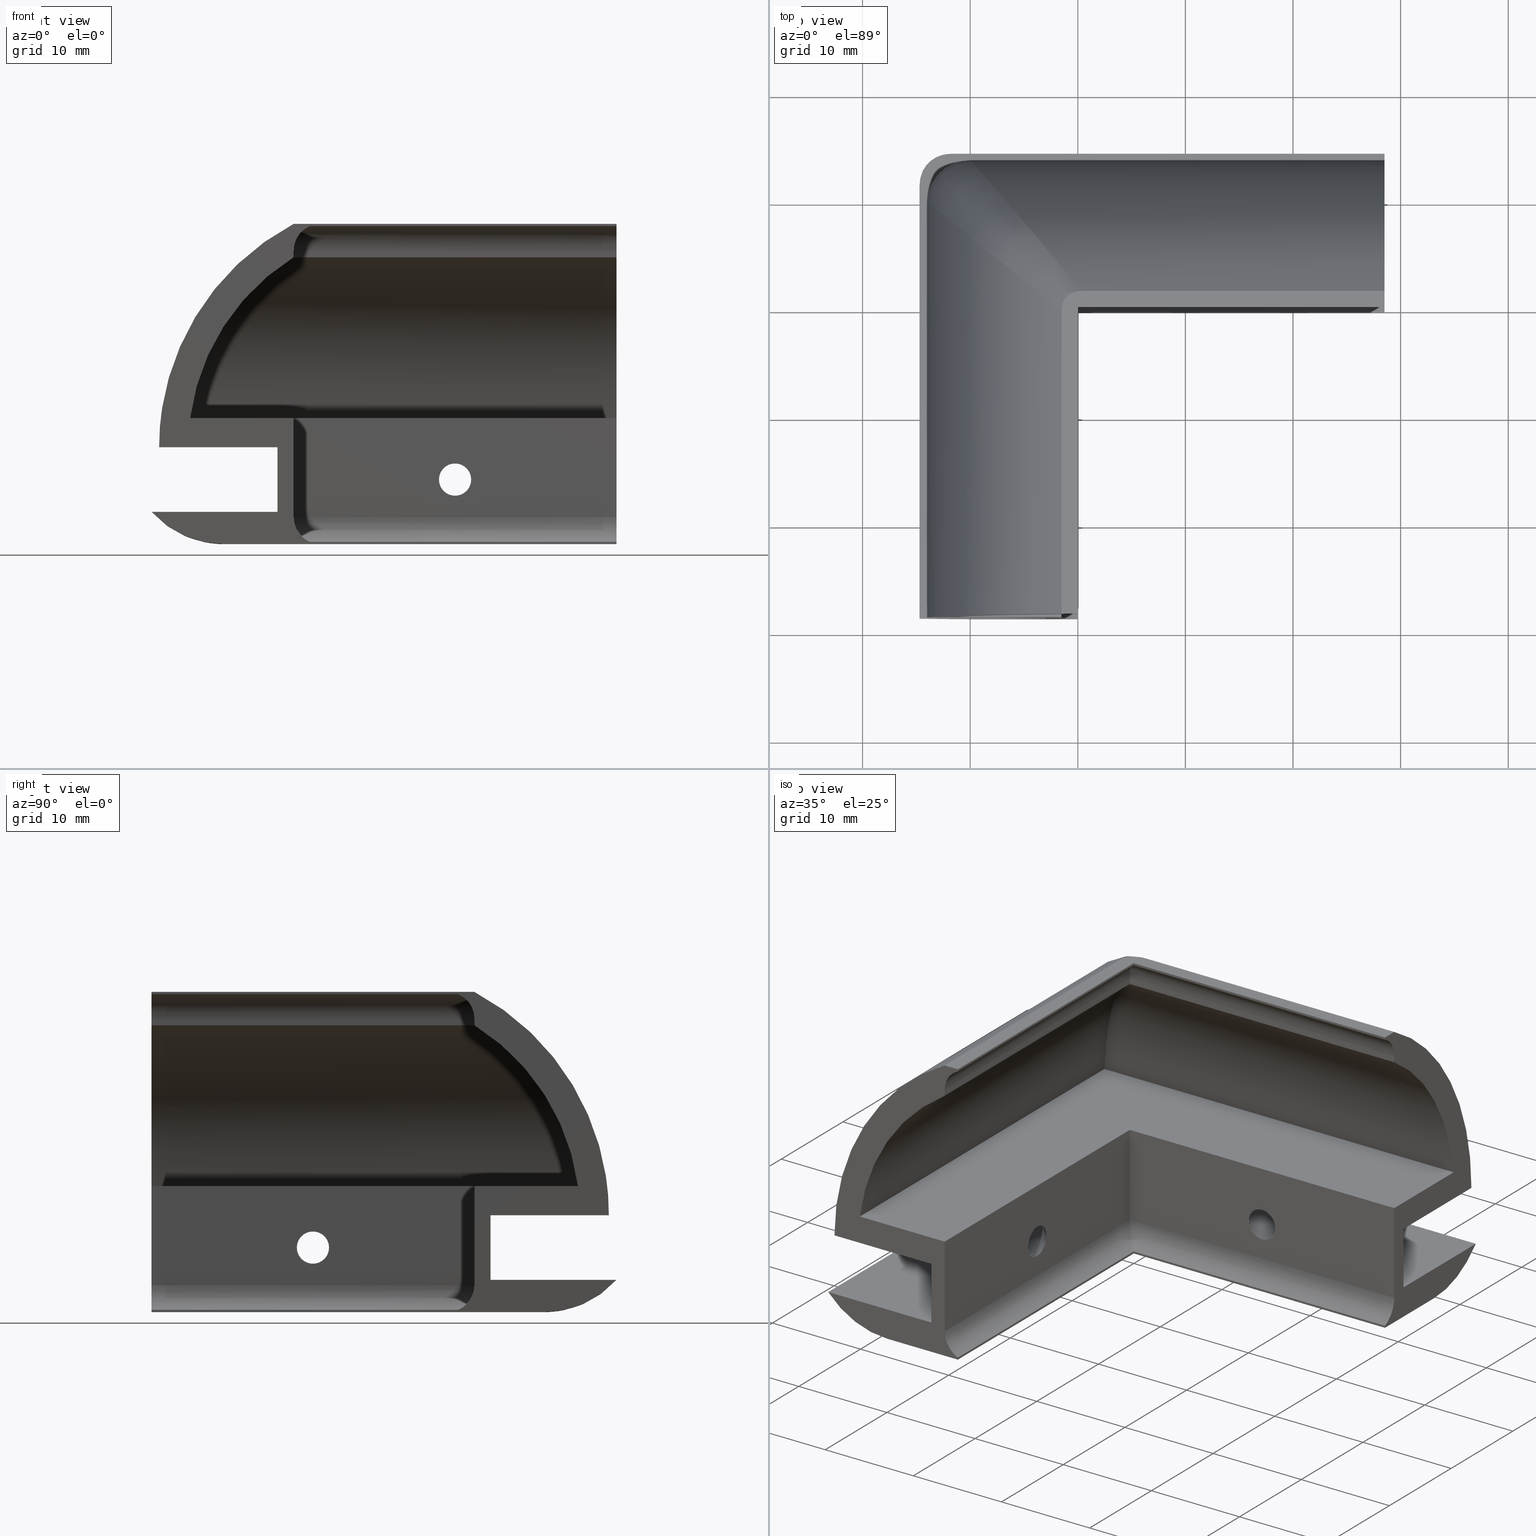
[diagram: canonical four-view strip — front | top / right | iso, engineering-drawing reading convention]
A machine part, canonical four-view strip (front | top / right | iso — engineering-drawing reading convention). The complete STEP part file that produces these views, byte-faithful:
ISO-10303-21;
HEADER;
/****************************************************************
 * Generated by software with PDE/Lib inside                    *
 * PDElib Version v4.4, created Mon 02/23/2004                  *
 * International Technegroup Inc. (www.iti-oh.com)              *
 ****************************************************************/
FILE_DESCRIPTION(('STEP AP203'),'2;1');
FILE_NAME('XF36112G.stp','2011-02-02T11:59:02',(''),(''),'2009.3.110','THINKDESIGN','');
FILE_SCHEMA(('CONFIG_CONTROL_DESIGN'));
ENDSEC;
DATA;
#2=CARTESIAN_POINT('',(9.499999999999886,16.000000000000146,9.0));
#3=DIRECTION('',(-3.081488E-033,1.0,-6.123234E-017));
#4=DIRECTION('',(-0.991539188846185,7.948429E-018,0.129807692307700));
#5=AXIS2_PLACEMENT_3D('',#2,#3,#4);
#6=CYLINDRICAL_SURFACE('',#5,20.800000000000036);
#7=CARTESIAN_POINT('',(-11.124015128000792,11.124015128000785,11.700000000000159));
#8=VERTEX_POINT('',#7);
#9=CARTESIAN_POINT('',(-11.124015128000792,-28.499999999999858,11.700000000000159));
#10=VERTEX_POINT('',#9);
#11=CARTESIAN_POINT('',(-11.124015128000792,11.124015128000785,11.700000000000159));
#12=DIRECTION('',(0.0,-1.0,0.0));
#13=VECTOR('',#12,39.624015128000636);
#14=LINE('',#11,#13);
#15=EDGE_CURVE('',#8,#10,#14,.T.);
#16=ORIENTED_EDGE('',*,*,#15,.F.);
#17=CARTESIAN_POINT('',(-1.500000000000000,1.500000000000098,26.653328298085967));
#18=VERTEX_POINT('',#17);
#19=CARTESIAN_POINT('',(9.499999999999886,-9.499999999999831,9.0));
#20=DIRECTION('',(0.707106781186548,0.707106781186547,-4.329780E-017));
#21=DIRECTION('',(0.707106781186547,-0.707106781186548,4.329780E-017));
#22=AXIS2_PLACEMENT_3D('',#19,#20,#21);
#23=ELLIPSE('',#22,29.415642097360440,20.800000000000036);
#24=EDGE_CURVE('',#8,#18,#23,.T.);
#25=ORIENTED_EDGE('',*,*,#24,.T.);
#26=CARTESIAN_POINT('',(-1.500000000000000,-28.499999999999858,26.653328298085970));
#27=VERTEX_POINT('',#26);
#28=CARTESIAN_POINT('',(-1.500000000000000,1.500000000000100,26.653328298085967));
#29=DIRECTION('',(0.0,-1.0,0.0));
#30=VECTOR('',#29,29.999999999999950);
#31=LINE('',#28,#30);
#32=EDGE_CURVE('',#18,#27,#31,.T.);
#33=ORIENTED_EDGE('',*,*,#32,.T.);
#34=CARTESIAN_POINT('',(9.499999999999886,-28.499999999999858,8.999999999999998));
#35=DIRECTION('',(-3.081488E-033,1.0,-6.123234E-017));
#36=DIRECTION('',(-0.528846153846148,5.196897E-017,0.848717706638748));
#37=AXIS2_PLACEMENT_3D('',#34,#35,#36);
#38=CIRCLE('',#37,20.800000000000036);
#39=EDGE_CURVE('',#10,#27,#38,.T.);
#40=ORIENTED_EDGE('',*,*,#39,.F.);
#41=EDGE_LOOP('',(#16,#25,#33,#40));
#42=FACE_OUTER_BOUND('',#41,.T.);
#43=ADVANCED_FACE('',(#42),#6,.F.);
#44=CARTESIAN_POINT('',(-1.500000000000000,16.000000000000149,26.653328298085967));
#45=DIRECTION('',(1.0,0.0,0.0));
#46=DIRECTION('',(0.0,0.0,1.0));
#47=AXIS2_PLACEMENT_3D('',#44,#45,#46);
#48=PLANE('',#47);
#49=ORIENTED_EDGE('',*,*,#32,.F.);
#50=CARTESIAN_POINT('',(-1.500000000000000,1.500000000000098,27.266559657392918));
#51=VERTEX_POINT('',#50);
#52=CARTESIAN_POINT('',(-1.500000000000000,1.500000000000098,26.653328298085967));
#53=DIRECTION('',(0.0,0.0,1.0));
#54=VECTOR('',#53,0.613231359306951);
#55=LINE('',#52,#54);
#56=EDGE_CURVE('',#18,#51,#55,.T.);
#57=ORIENTED_EDGE('',*,*,#56,.T.);
#58=CARTESIAN_POINT('',(-1.500000000000000,-28.499999999999858,27.266559657392921));
#59=VERTEX_POINT('',#58);
#60=CARTESIAN_POINT('',(-1.500000000000000,1.500000000000100,27.266559657392918));
#61=DIRECTION('',(0.0,-1.0,0.0));
#62=VECTOR('',#61,29.999999999999950);
#63=LINE('',#60,#62);
#64=EDGE_CURVE('',#51,#59,#63,.T.);
#65=ORIENTED_EDGE('',*,*,#64,.T.);
#66=CARTESIAN_POINT('',(-1.500000000000000,-28.499999999999858,26.653328298086002));
#67=DIRECTION('',(0.0,0.0,1.0));
#68=VECTOR('',#67,0.613231359306916);
#69=LINE('',#66,#68);
#70=EDGE_CURVE('',#27,#59,#69,.T.);
#71=ORIENTED_EDGE('',*,*,#70,.F.);
#72=EDGE_LOOP('',(#49,#57,#65,#71));
#73=FACE_OUTER_BOUND('',#72,.T.);
#74=ADVANCED_FACE('',(#73),#48,.T.);
#75=CARTESIAN_POINT('',(0.999999999817646,16.000000000000149,27.266559657392918));
#76=DIRECTION('',(0.0,1.0,-6.123234E-017));
#77=DIRECTION('',(-1.0,0.0,0.0));
#78=AXIS2_PLACEMENT_3D('',#75,#76,#77);
#79=CYLINDRICAL_SURFACE('',#78,2.499999999817598);
#80=ORIENTED_EDGE('',*,*,#64,.F.);
#81=CARTESIAN_POINT('',(2.000888E-011,-1.993250E-011,29.557847504760161));
#82=VERTEX_POINT('',#81);
#83=CARTESIAN_POINT('',(0.999999999817646,-0.999999999817679,27.266559657392918));
#84=DIRECTION('',(0.707106781186548,0.707106781186547,-4.329780E-017));
#85=DIRECTION('',(0.707106781186547,-0.707106781186548,4.329780E-017));
#86=AXIS2_PLACEMENT_3D('',#83,#84,#85);
#87=ELLIPSE('',#86,3.535533905674784,2.499999999817598);
#88=EDGE_CURVE('',#51,#82,#87,.T.);
#89=ORIENTED_EDGE('',*,*,#88,.T.);
#90=CARTESIAN_POINT('',(2.000888E-011,-28.499999999999858,29.557847504760165));
#91=VERTEX_POINT('',#90);
#92=CARTESIAN_POINT('',(2.000888E-011,-1.993072E-011,29.557847504760161));
#93=DIRECTION('',(0.0,-1.0,0.0));
#94=VECTOR('',#93,28.499999999979920);
#95=LINE('',#92,#94);
#96=EDGE_CURVE('',#82,#91,#95,.T.);
#97=ORIENTED_EDGE('',*,*,#96,.T.);
#98=CARTESIAN_POINT('',(0.999999999817646,-28.499999999999858,27.266559657392921));
#99=DIRECTION('',(0.0,1.0,-6.123234E-017));
#100=DIRECTION('',(-1.0,0.0,0.0));
#101=AXIS2_PLACEMENT_3D('',#98,#99,#100);
#102=CIRCLE('',#101,2.499999999817598);
#103=EDGE_CURVE('',#59,#91,#102,.T.);
#104=ORIENTED_EDGE('',*,*,#103,.F.);
#105=EDGE_LOOP('',(#80,#89,#97,#104));
#106=FACE_OUTER_BOUND('',#105,.T.);
#107=ADVANCED_FACE('',(#106),#79,.F.);
#108=CARTESIAN_POINT('',(2.000888E-011,16.000000000000149,29.557847504760161));
#109=DIRECTION('',(1.0,0.0,0.0));
#110=DIRECTION('',(0.0,0.0,1.0));
#111=AXIS2_PLACEMENT_3D('',#108,#109,#110);
#112=PLANE('',#111);
#113=ORIENTED_EDGE('',*,*,#96,.F.);
#114=CARTESIAN_POINT('',(2.000888E-011,-1.993250E-011,29.766559657295147));
#115=VERTEX_POINT('',#114);
#116=CARTESIAN_POINT('',(2.000888E-011,-1.993250E-011,29.557847504760161));
#117=DIRECTION('',(0.0,0.0,1.0));
#118=VECTOR('',#117,0.208712152534986);
#119=LINE('',#116,#118);
#120=EDGE_CURVE('',#82,#115,#119,.T.);
#121=ORIENTED_EDGE('',*,*,#120,.T.);
#122=CARTESIAN_POINT('',(2.000888E-011,-28.499999999999858,29.766559657295151));
#123=VERTEX_POINT('',#122);
#124=CARTESIAN_POINT('',(2.000888E-011,-1.993072E-011,29.766559657295147));
#125=DIRECTION('',(0.0,-1.0,0.0));
#126=VECTOR('',#125,28.499999999979920);
#127=LINE('',#124,#126);
#128=EDGE_CURVE('',#115,#123,#127,.T.);
#129=ORIENTED_EDGE('',*,*,#128,.T.);
#130=CARTESIAN_POINT('',(2.000888E-011,-28.499999999999858,29.557847504760165));
#131=DIRECTION('',(0.0,0.0,1.0));
#132=VECTOR('',#131,0.208712152534986);
#133=LINE('',#130,#132);
#134=EDGE_CURVE('',#91,#123,#133,.T.);
#135=ORIENTED_EDGE('',*,*,#134,.F.);
#136=EDGE_LOOP('',(#113,#121,#129,#135));
#137=FACE_OUTER_BOUND('',#136,.T.);
#138=ADVANCED_FACE('',(#137),#112,.T.);
#139=CARTESIAN_POINT('',(-3.000000000000114,16.000000000000146,9.0));
#140=DIRECTION('',(-1.0,0.0,0.0));
#141=DIRECTION('',(0.0,0.0,-1.0));
#142=AXIS2_PLACEMENT_3D('',#139,#140,#141);
#143=PLANE('',#142);
#144=CARTESIAN_POINT('',(-3.000000000000114,3.000000000000188,2.999999999999999));
#145=VERTEX_POINT('',#144);
#146=CARTESIAN_POINT('',(-3.000000000000114,-13.499999999999854,3.000000000000001));
#147=VERTEX_POINT('',#146);
#148=CARTESIAN_POINT('',(-3.000000000000114,3.000000000000188,3.0));
#149=DIRECTION('',(0.0,-1.0,0.0));
#150=VECTOR('',#149,16.500000000000043);
#151=LINE('',#148,#150);
#152=EDGE_CURVE('',#145,#147,#151,.T.);
#153=ORIENTED_EDGE('',*,*,#152,.T.);
#154=CARTESIAN_POINT('',(-3.000000000000114,-10.499999999999854,6.0));
#155=VERTEX_POINT('',#154);
#156=CARTESIAN_POINT('',(-3.000000000000114,-13.499999999999854,6.0));
#157=DIRECTION('',(1.0,0.0,0.0));
#158=DIRECTION('',(0.0,1.0,-6.123234E-017));
#159=AXIS2_PLACEMENT_3D('',#156,#157,#158);
#160=CIRCLE('',#159,3.0);
#161=EDGE_CURVE('',#147,#155,#160,.T.);
#162=ORIENTED_EDGE('',*,*,#161,.T.);
#163=CARTESIAN_POINT('',(-3.000000000000114,-13.499999999999854,9.0));
#164=VERTEX_POINT('',#163);
#165=CARTESIAN_POINT('',(-3.000000000000114,-13.499999999999854,6.0));
#166=DIRECTION('',(1.0,0.0,0.0));
#167=DIRECTION('',(0.0,1.0,-6.123234E-017));
#168=AXIS2_PLACEMENT_3D('',#165,#166,#167);
#169=CIRCLE('',#168,3.0);
#170=EDGE_CURVE('',#155,#164,#169,.T.);
#171=ORIENTED_EDGE('',*,*,#170,.T.);
#172=CARTESIAN_POINT('',(-3.000000000000114,3.000000000000188,9.0));
#173=VERTEX_POINT('',#172);
#174=CARTESIAN_POINT('',(-3.000000000000114,3.000000000000188,9.0));
#175=DIRECTION('',(0.0,-1.0,0.0));
#176=VECTOR('',#175,16.500000000000043);
#177=LINE('',#174,#176);
#178=EDGE_CURVE('',#173,#164,#177,.T.);
#179=ORIENTED_EDGE('',*,*,#178,.F.);
#180=CARTESIAN_POINT('',(-3.000000000000114,3.000000000000188,9.0));
#181=DIRECTION('',(0.0,0.0,-1.0));
#182=VECTOR('',#181,6.0);
#183=LINE('',#180,#182);
#184=EDGE_CURVE('',#173,#145,#183,.T.);
#185=ORIENTED_EDGE('',*,*,#184,.T.);
#186=EDGE_LOOP('',(#153,#162,#171,#179,#185));
#187=FACE_OUTER_BOUND('',#186,.T.);
#188=ADVANCED_FACE('',(#187),#143,.T.);
#189=CARTESIAN_POINT('',(-3.000000000000114,16.000000000000146,9.0));
#190=DIRECTION('',(-1.0,0.0,0.0));
#191=DIRECTION('',(0.0,0.0,-1.0));
#192=AXIS2_PLACEMENT_3D('',#189,#190,#191);
#193=PLANE('',#192);
#194=CARTESIAN_POINT('',(-3.000000000000114,-28.499999999999858,9.0));
#195=VERTEX_POINT('',#194);
#196=CARTESIAN_POINT('',(-3.000000000000114,-13.499999999999854,9.000000000000002));
#197=DIRECTION('',(0.0,-1.0,0.0));
#198=VECTOR('',#197,15.0);
#199=LINE('',#196,#198);
#200=EDGE_CURVE('',#164,#195,#199,.T.);
#201=ORIENTED_EDGE('',*,*,#200,.F.);
#202=CARTESIAN_POINT('',(-3.000000000000114,-13.499999999999854,6.0));
#203=DIRECTION('',(1.0,0.0,0.0));
#204=DIRECTION('',(0.0,1.0,-6.123234E-017));
#205=AXIS2_PLACEMENT_3D('',#202,#203,#204);
#206=CIRCLE('',#205,3.0);
#207=EDGE_CURVE('',#164,#147,#206,.T.);
#208=ORIENTED_EDGE('',*,*,#207,.T.);
#209=CARTESIAN_POINT('',(-3.000000000000114,-28.499999999999858,3.000000000000001));
#210=VERTEX_POINT('',#209);
#211=CARTESIAN_POINT('',(-3.000000000000114,-13.499999999999854,3.000000000000001));
#212=DIRECTION('',(0.0,-1.0,0.0));
#213=VECTOR('',#212,15.0);
#214=LINE('',#211,#213);
#215=EDGE_CURVE('',#147,#210,#214,.T.);
#216=ORIENTED_EDGE('',*,*,#215,.T.);
#217=CARTESIAN_POINT('',(-3.000000000000114,-28.499999999999858,9.0));
#218=DIRECTION('',(0.0,0.0,-1.0));
#219=VECTOR('',#218,6.0);
#220=LINE('',#217,#219);
#221=EDGE_CURVE('',#195,#210,#220,.T.);
#222=ORIENTED_EDGE('',*,*,#221,.F.);
#223=EDGE_LOOP('',(#201,#208,#216,#222));
#224=FACE_OUTER_BOUND('',#223,.T.);
#225=ADVANCED_FACE('',(#224),#193,.T.);
#226=CARTESIAN_POINT('',(0.0,16.000000000000146,-8.881784E-016));
#227=DIRECTION('',(1.0,0.0,0.0));
#228=DIRECTION('',(0.0,0.0,1.0));
#229=AXIS2_PLACEMENT_3D('',#226,#227,#228);
#230=PLANE('',#229);
#231=CARTESIAN_POINT('',(0.0,0.0,-8.881784E-016));
#232=VERTEX_POINT('',#231);
#233=CARTESIAN_POINT('',(0.0,-28.499999999999858,8.881784E-016));
#234=VERTEX_POINT('',#233);
#235=CARTESIAN_POINT('',(0.0,0.0,9.153902E-017));
#236=DIRECTION('',(0.0,-1.0,0.0));
#237=VECTOR('',#236,28.499999999999854);
#238=LINE('',#235,#237);
#239=EDGE_CURVE('',#232,#234,#238,.T.);
#240=ORIENTED_EDGE('',*,*,#239,.F.);
#241=CARTESIAN_POINT('',(0.0,0.0,0.208712152522025));
#242=VERTEX_POINT('',#241);
#243=CARTESIAN_POINT('',(0.0,0.0,-8.881784E-016));
#244=DIRECTION('',(0.0,0.0,1.0));
#245=VECTOR('',#244,0.208712152522025);
#246=LINE('',#243,#245);
#247=EDGE_CURVE('',#232,#242,#246,.T.);
#248=ORIENTED_EDGE('',*,*,#247,.T.);
#249=CARTESIAN_POINT('',(0.0,-28.499999999999858,0.208712152522026));
#250=VERTEX_POINT('',#249);
#251=CARTESIAN_POINT('',(0.0,0.0,0.208712152522026));
#252=DIRECTION('',(0.0,-1.0,0.0));
#253=VECTOR('',#252,28.499999999999854);
#254=LINE('',#251,#253);
#255=EDGE_CURVE('',#242,#250,#254,.T.);
#256=ORIENTED_EDGE('',*,*,#255,.T.);
#257=CARTESIAN_POINT('',(0.0,-28.499999999999858,8.881784E-016));
#258=DIRECTION('',(0.0,0.0,1.0));
#259=VECTOR('',#258,0.208712152522080);
#260=LINE('',#257,#259);
#261=EDGE_CURVE('',#234,#250,#260,.T.);
#262=ORIENTED_EDGE('',*,*,#261,.F.);
#263=EDGE_LOOP('',(#240,#248,#256,#262));
#264=FACE_OUTER_BOUND('',#263,.T.);
#265=ADVANCED_FACE('',(#264),#230,.T.);
#266=CARTESIAN_POINT('',(1.0,16.000000000000146,2.499999999999999));
#267=DIRECTION('',(0.0,1.0,-6.123234E-017));
#268=DIRECTION('',(-0.399999999999992,-5.612037E-017,-0.916515138991172));
#269=AXIS2_PLACEMENT_3D('',#266,#267,#268);
#270=CYLINDRICAL_SURFACE('',#269,2.500000000000000);
#271=ORIENTED_EDGE('',*,*,#255,.F.);
#272=CARTESIAN_POINT('',(-1.500000000000000,1.500000000000096,2.499999999999999));
#273=VERTEX_POINT('',#272);
#274=CARTESIAN_POINT('',(1.0,-1.0,2.499999999999999));
#275=DIRECTION('',(0.707106781186548,0.707106781186547,-4.329780E-017));
#276=DIRECTION('',(0.707106781186547,-0.707106781186548,4.329780E-017));
#277=AXIS2_PLACEMENT_3D('',#274,#275,#276);
#278=ELLIPSE('',#277,3.535533905932739,2.500000000000000);
#279=EDGE_CURVE('',#242,#273,#278,.T.);
#280=ORIENTED_EDGE('',*,*,#279,.T.);
#281=CARTESIAN_POINT('',(-1.500000000000000,-28.499999999999858,2.500000000000001));
#282=VERTEX_POINT('',#281);
#283=CARTESIAN_POINT('',(-1.500000000000000,1.500000000000096,2.500000000000000));
#284=DIRECTION('',(0.0,-1.0,0.0));
#285=VECTOR('',#284,29.999999999999950);
#286=LINE('',#283,#285);
#287=EDGE_CURVE('',#273,#282,#286,.T.);
#288=ORIENTED_EDGE('',*,*,#287,.T.);
#289=CARTESIAN_POINT('',(1.0,-28.499999999999858,2.500000000000001));
#290=DIRECTION('',(0.0,1.0,-6.123234E-017));
#291=DIRECTION('',(-1.0,0.0,0.0));
#292=AXIS2_PLACEMENT_3D('',#289,#290,#291);
#293=CIRCLE('',#292,2.500000000000000);
#294=EDGE_CURVE('',#250,#282,#293,.T.);
#295=ORIENTED_EDGE('',*,*,#294,.F.);
#296=EDGE_LOOP('',(#271,#280,#288,#295));
#297=FACE_OUTER_BOUND('',#296,.T.);
#298=ADVANCED_FACE('',(#297),#270,.F.);
#299=CARTESIAN_POINT('',(-1.500000000000000,16.000000000000146,2.499999999999999));
#300=DIRECTION('',(1.0,0.0,0.0));
#301=DIRECTION('',(0.0,0.0,1.0));
#302=AXIS2_PLACEMENT_3D('',#299,#300,#301);
#303=PLANE('',#302);
#304=CARTESIAN_POINT('',(-1.500000000000000,-28.499999999999858,11.700000000000159));
#305=VERTEX_POINT('',#304);
#306=CARTESIAN_POINT('',(-1.500000000000000,-28.499999999999858,2.500000000000000));
#307=DIRECTION('',(0.0,0.0,1.0));
#308=VECTOR('',#307,9.200000000000159);
#309=LINE('',#306,#308);
#310=EDGE_CURVE('',#282,#305,#309,.T.);
#311=ORIENTED_EDGE('',*,*,#310,.F.);
#312=ORIENTED_EDGE('',*,*,#287,.F.);
#313=CARTESIAN_POINT('',(-1.500000000000000,1.500000000000096,11.700000000000159));
#314=VERTEX_POINT('',#313);
#315=CARTESIAN_POINT('',(-1.500000000000000,1.500000000000096,11.700000000000159));
#316=DIRECTION('',(0.0,0.0,-1.0));
#317=VECTOR('',#316,9.200000000000159);
#318=LINE('',#315,#317);
#319=EDGE_CURVE('',#314,#273,#318,.T.);
#320=ORIENTED_EDGE('',*,*,#319,.F.);
#321=CARTESIAN_POINT('',(-1.500000000000000,1.500000000000096,11.700000000000159));
#322=DIRECTION('',(0.0,-1.0,0.0));
#323=VECTOR('',#322,29.999999999999950);
#324=LINE('',#321,#323);
#325=EDGE_CURVE('',#314,#305,#324,.T.);
#326=ORIENTED_EDGE('',*,*,#325,.T.);
#327=EDGE_LOOP('',(#311,#312,#320,#326));
#328=FACE_OUTER_BOUND('',#327,.T.);
#329=CARTESIAN_POINT('',(-1.500000000000000,-14.999999999999854,6.0));
#330=VERTEX_POINT('',#329);
#331=CARTESIAN_POINT('',(-1.500000000000000,-11.999999999999854,6.0));
#332=VERTEX_POINT('',#331);
#333=CARTESIAN_POINT('',(-1.500000000000000,-13.499999999999854,6.0));
#334=DIRECTION('',(1.0,0.0,0.0));
#335=DIRECTION('',(0.0,1.0,-6.123234E-017));
#336=AXIS2_PLACEMENT_3D('',#333,#334,#335);
#337=CIRCLE('',#336,1.500000000000000);
#338=EDGE_CURVE('',#330,#332,#337,.T.);
#339=ORIENTED_EDGE('',*,*,#338,.F.);
#340=CARTESIAN_POINT('',(-1.500000000000000,-13.499999999999854,6.0));
#341=DIRECTION('',(1.0,0.0,0.0));
#342=DIRECTION('',(0.0,1.0,-6.123234E-017));
#343=AXIS2_PLACEMENT_3D('',#340,#341,#342);
#344=CIRCLE('',#343,1.500000000000000);
#345=EDGE_CURVE('',#332,#330,#344,.T.);
#346=ORIENTED_EDGE('',*,*,#345,.F.);
#347=EDGE_LOOP('',(#339,#346));
#348=FACE_BOUND('',#347,.T.);
#349=ADVANCED_FACE('',(#328,#348),#303,.T.);
#350=CARTESIAN_POINT('',(-16.179144325787092,-28.499999999999858,-2.976775965765341));
#351=DIRECTION('',(0.0,-1.0,0.0));
#352=DIRECTION('',(1.0,0.0,0.0));
#353=AXIS2_PLACEMENT_3D('',#350,#351,#352);
#354=PLANE('',#353);
#355=CARTESIAN_POINT('',(-1.500000000000000,-28.499999999999858,11.700000000000159));
#356=DIRECTION('',(-1.0,0.0,0.0));
#357=VECTOR('',#356,9.624015128000789);
#358=LINE('',#355,#357);
#359=EDGE_CURVE('',#305,#10,#358,.T.);
#360=ORIENTED_EDGE('',*,*,#359,.T.);
#361=ORIENTED_EDGE('',*,*,#39,.T.);
#362=ORIENTED_EDGE('',*,*,#70,.T.);
#363=ORIENTED_EDGE('',*,*,#103,.T.);
#364=ORIENTED_EDGE('',*,*,#134,.T.);
#365=CARTESIAN_POINT('',(-1.500000000000000,-28.499999999999858,29.766559657295151));
#366=VERTEX_POINT('',#365);
#367=CARTESIAN_POINT('',(2.000888E-011,-28.499999999999858,29.766559657295151));
#368=DIRECTION('',(-1.0,0.0,0.0));
#369=VECTOR('',#368,1.500000000020009);
#370=LINE('',#367,#369);
#371=EDGE_CURVE('',#123,#366,#370,.T.);
#372=ORIENTED_EDGE('',*,*,#371,.T.);
#373=CARTESIAN_POINT('',(-14.0,-28.499999999999858,9.0));
#374=VERTEX_POINT('',#373);
#375=CARTESIAN_POINT('',(9.499999999999888,-28.499999999999858,9.000000000000002));
#376=DIRECTION('',(3.081488E-033,-1.0,6.123234E-017));
#377=DIRECTION('',(-0.468085106382976,5.411000E-017,0.883683389672137));
#378=AXIS2_PLACEMENT_3D('',#375,#376,#377);
#379=CIRCLE('',#378,23.499999999999911);
#380=EDGE_CURVE('',#366,#374,#379,.T.);
#381=ORIENTED_EDGE('',*,*,#380,.T.);
#382=CARTESIAN_POINT('',(-14.0,-28.499999999999858,9.0));
#383=DIRECTION('',(1.0,0.0,0.0));
#384=VECTOR('',#383,10.999999999999886);
#385=LINE('',#382,#384);
#386=EDGE_CURVE('',#374,#195,#385,.T.);
#387=ORIENTED_EDGE('',*,*,#386,.T.);
#388=ORIENTED_EDGE('',*,*,#221,.T.);
#389=CARTESIAN_POINT('',(-14.708203932499259,-28.499999999999858,3.000000000000001));
#390=VERTEX_POINT('',#389);
#391=CARTESIAN_POINT('',(-3.000000000000114,-28.499999999999858,3.000000000000001));
#392=DIRECTION('',(-1.0,0.0,0.0));
#393=VECTOR('',#392,11.708203932499160);
#394=LINE('',#391,#393);
#395=EDGE_CURVE('',#210,#390,#394,.T.);
#396=ORIENTED_EDGE('',*,*,#395,.T.);
#397=CARTESIAN_POINT('',(-8.0,-28.499999999999858,8.881784E-016));
#398=VERTEX_POINT('',#397);
#399=CARTESIAN_POINT('',(-8.0,-28.499999999999858,9.0));
#400=DIRECTION('',(6.162976E-033,-1.0,6.123234E-017));
#401=DIRECTION('',(-0.745355992499924,-4.082156E-017,-0.666666666666673));
#402=AXIS2_PLACEMENT_3D('',#399,#400,#401);
#403=CIRCLE('',#402,8.999999999999929);
#404=EDGE_CURVE('',#390,#398,#403,.T.);
#405=ORIENTED_EDGE('',*,*,#404,.T.);
#406=CARTESIAN_POINT('',(-8.0,-28.499999999999858,8.881784E-016));
#407=DIRECTION('',(1.0,0.0,0.0));
#408=VECTOR('',#407,8.0);
#409=LINE('',#406,#408);
#410=EDGE_CURVE('',#398,#234,#409,.T.);
#411=ORIENTED_EDGE('',*,*,#410,.T.);
#412=ORIENTED_EDGE('',*,*,#261,.T.);
#413=ORIENTED_EDGE('',*,*,#294,.T.);
#414=ORIENTED_EDGE('',*,*,#310,.T.);
#415=EDGE_LOOP('',(#360,#361,#362,#363,#364,#372,#381,#387,#388,#396,#405,#411,#412,#413,#414));
#416=FACE_OUTER_BOUND('',#415,.T.);
#417=ADVANCED_FACE('',(#416),#354,.T.);
#418=CARTESIAN_POINT('',(28.500006930995369,-9.499999999999737,9.0));
#419=DIRECTION('',(1.0,6.123234E-017,3.081488E-033));
#420=DIRECTION('',(-6.071426E-017,0.991539188846185,0.129807692307700));
#421=AXIS2_PLACEMENT_3D('',#418,#419,#420);
#422=CYLINDRICAL_SURFACE('',#421,20.800000000000036);
#423=CARTESIAN_POINT('',(28.500006930995369,11.124015128000933,11.700000000000159));
#424=VERTEX_POINT('',#423);
#425=CARTESIAN_POINT('',(28.500006930995369,1.500000000000149,26.653328298085967));
#426=VERTEX_POINT('',#425);
#427=CARTESIAN_POINT('',(28.500006930995369,-9.499999999999737,9.0));
#428=DIRECTION('',(1.0,6.123234E-017,3.081488E-033));
#429=DIRECTION('',(-3.238249E-017,0.528846153846148,0.848717706638748));
#430=AXIS2_PLACEMENT_3D('',#427,#428,#429);
#431=CIRCLE('',#430,20.800000000000036);
#432=EDGE_CURVE('',#424,#426,#431,.T.);
#433=ORIENTED_EDGE('',*,*,#432,.T.);
#434=CARTESIAN_POINT('',(28.500006930995369,1.500000000000149,26.653328298085967));
#435=DIRECTION('',(-1.0,0.0,0.0));
#436=VECTOR('',#435,30.000006930995433);
#437=LINE('',#434,#436);
#438=EDGE_CURVE('',#426,#18,#437,.T.);
#439=ORIENTED_EDGE('',*,*,#438,.T.);
#440=ORIENTED_EDGE('',*,*,#24,.F.);
#441=CARTESIAN_POINT('',(28.500006930995369,11.124015128000933,11.700000000000159));
#442=DIRECTION('',(-1.0,0.0,0.0));
#443=VECTOR('',#442,39.624022058996260);
#444=LINE('',#441,#443);
#445=EDGE_CURVE('',#424,#8,#444,.T.);
#446=ORIENTED_EDGE('',*,*,#445,.F.);
#447=EDGE_LOOP('',(#433,#439,#440,#446));
#448=FACE_OUTER_BOUND('',#447,.T.);
#449=ADVANCED_FACE('',(#448),#422,.F.);
#450=CARTESIAN_POINT('',(28.500006930995369,1.500000000000149,26.653328298085967));
#451=DIRECTION('',(0.0,-1.0,0.0));
#452=DIRECTION('',(0.0,0.0,1.0));
#453=AXIS2_PLACEMENT_3D('',#450,#451,#452);
#454=PLANE('',#453);
#455=CARTESIAN_POINT('',(28.500006930995369,1.500000000000101,27.266559657392918));
#456=VERTEX_POINT('',#455);
#457=CARTESIAN_POINT('',(28.500006930995369,1.500000000000149,26.653328298086002));
#458=DIRECTION('',(0.0,0.0,1.0));
#459=VECTOR('',#458,0.613231359306916);
#460=LINE('',#457,#459);
#461=EDGE_CURVE('',#426,#456,#460,.T.);
#462=ORIENTED_EDGE('',*,*,#461,.T.);
#463=CARTESIAN_POINT('',(28.500006930995369,1.500000000000101,27.266559657392918));
#464=DIRECTION('',(-1.0,0.0,0.0));
#465=VECTOR('',#464,30.000006930995433);
#466=LINE('',#463,#465);
#467=EDGE_CURVE('',#456,#51,#466,.T.);
#468=ORIENTED_EDGE('',*,*,#467,.T.);
#469=ORIENTED_EDGE('',*,*,#56,.F.);
#470=ORIENTED_EDGE('',*,*,#438,.F.);
#471=EDGE_LOOP('',(#462,#468,#469,#470));
#472=FACE_OUTER_BOUND('',#471,.T.);
#473=ADVANCED_FACE('',(#472),#454,.T.);
#474=CARTESIAN_POINT('',(28.500006930995369,-0.999999999817497,27.266559657392918));
#475=DIRECTION('',(1.0,6.123234E-017,-3.749399E-033));
#476=DIRECTION('',(-6.123234E-017,1.0,-6.123234E-017));
#477=AXIS2_PLACEMENT_3D('',#474,#475,#476);
#478=CYLINDRICAL_SURFACE('',#477,2.499999999817598);
#479=CARTESIAN_POINT('',(28.500006930995369,-1.985967E-011,29.557847504760161));
#480=VERTEX_POINT('',#479);
#481=CARTESIAN_POINT('',(28.500006930995369,-0.999999999817497,27.266559657392918));
#482=DIRECTION('',(1.0,6.123234E-017,-3.749399E-033));
#483=DIRECTION('',(-6.123234E-017,1.0,-6.123234E-017));
#484=AXIS2_PLACEMENT_3D('',#481,#482,#483);
#485=CIRCLE('',#484,2.499999999817598);
#486=EDGE_CURVE('',#456,#480,#485,.T.);
#487=ORIENTED_EDGE('',*,*,#486,.T.);
#488=CARTESIAN_POINT('',(28.500006930995369,-1.985967E-011,29.557847504760161));
#489=DIRECTION('',(-1.0,0.0,0.0));
#490=VECTOR('',#489,28.500006930975406);
#491=LINE('',#488,#490);
#492=EDGE_CURVE('',#480,#82,#491,.T.);
#493=ORIENTED_EDGE('',*,*,#492,.T.);
#494=ORIENTED_EDGE('',*,*,#88,.F.);
#495=ORIENTED_EDGE('',*,*,#467,.F.);
#496=EDGE_LOOP('',(#487,#493,#494,#495));
#497=FACE_OUTER_BOUND('',#496,.T.);
#498=ADVANCED_FACE('',(#497),#478,.F.);
#499=CARTESIAN_POINT('',(28.500006930995369,-1.985967E-011,29.557847504760161));
#500=DIRECTION('',(0.0,-1.0,0.0));
#501=DIRECTION('',(0.0,0.0,1.0));
#502=AXIS2_PLACEMENT_3D('',#499,#500,#501);
#503=PLANE('',#502);
#504=CARTESIAN_POINT('',(28.500006930995369,-1.985967E-011,29.766559657295147));
#505=VERTEX_POINT('',#504);
#506=CARTESIAN_POINT('',(28.500006930995369,-1.985967E-011,29.557847504760161));
#507=DIRECTION('',(0.0,0.0,1.0));
#508=VECTOR('',#507,0.208712152534986);
#509=LINE('',#506,#508);
#510=EDGE_CURVE('',#480,#505,#509,.T.);
#511=ORIENTED_EDGE('',*,*,#510,.T.);
#512=CARTESIAN_POINT('',(28.500006930995369,-1.985967E-011,29.766559657295147));
#513=DIRECTION('',(-1.0,0.0,0.0));
#514=VECTOR('',#513,28.500006930975406);
#515=LINE('',#512,#514);
#516=EDGE_CURVE('',#505,#115,#515,.T.);
#517=ORIENTED_EDGE('',*,*,#516,.T.);
#518=ORIENTED_EDGE('',*,*,#120,.F.);
#519=ORIENTED_EDGE('',*,*,#492,.F.);
#520=EDGE_LOOP('',(#511,#517,#518,#519));
#521=FACE_OUTER_BOUND('',#520,.T.);
#522=ADVANCED_FACE('',(#521),#503,.T.);
#523=CARTESIAN_POINT('',(28.500006930995369,3.000000000000261,9.0));
#524=DIRECTION('',(0.0,1.0,0.0));
#525=DIRECTION('',(0.0,0.0,-1.0));
#526=AXIS2_PLACEMENT_3D('',#523,#524,#525);
#527=PLANE('',#526);
#528=CARTESIAN_POINT('',(28.500006930995369,3.000000000000261,9.0));
#529=VERTEX_POINT('',#528);
#530=CARTESIAN_POINT('',(28.500006930995369,3.000000000000261,2.999999999999999));
#531=VERTEX_POINT('',#530);
#532=CARTESIAN_POINT('',(28.500006930995369,3.000000000000261,9.0));
#533=DIRECTION('',(0.0,0.0,-1.0));
#534=VECTOR('',#533,6.0);
#535=LINE('',#532,#534);
#536=EDGE_CURVE('',#529,#531,#535,.T.);
#537=ORIENTED_EDGE('',*,*,#536,.T.);
#538=CARTESIAN_POINT('',(13.500000000000000,3.000000000000259,2.999999999999999));
#539=VERTEX_POINT('',#538);
#540=CARTESIAN_POINT('',(28.500006930995369,3.000000000000261,2.999999999999999));
#541=DIRECTION('',(-1.0,0.0,0.0));
#542=VECTOR('',#541,15.000006930995369);
#543=LINE('',#540,#542);
#544=EDGE_CURVE('',#531,#539,#543,.T.);
#545=ORIENTED_EDGE('',*,*,#544,.T.);
#546=CARTESIAN_POINT('',(13.500000000000000,3.000000000000259,9.0));
#547=VERTEX_POINT('',#546);
#548=CARTESIAN_POINT('',(13.500000000000000,3.000000000000146,5.999999999999999));
#549=DIRECTION('',(0.0,-1.0,6.123234E-017));
#550=DIRECTION('',(-1.0,0.0,0.0));
#551=AXIS2_PLACEMENT_3D('',#548,#549,#550);
#552=CIRCLE('',#551,2.999999999999886);
#553=EDGE_CURVE('',#539,#547,#552,.T.);
#554=ORIENTED_EDGE('',*,*,#553,.T.);
#555=CARTESIAN_POINT('',(28.500006930995369,3.000000000000261,9.0));
#556=DIRECTION('',(-1.0,0.0,0.0));
#557=VECTOR('',#556,15.000006930995369);
#558=LINE('',#555,#557);
#559=EDGE_CURVE('',#529,#547,#558,.T.);
#560=ORIENTED_EDGE('',*,*,#559,.F.);
#561=EDGE_LOOP('',(#537,#545,#554,#560));
#562=FACE_OUTER_BOUND('',#561,.T.);
#563=ADVANCED_FACE('',(#562),#527,.T.);
#564=CARTESIAN_POINT('',(28.500006930995369,3.000000000000261,9.0));
#565=DIRECTION('',(0.0,1.0,0.0));
#566=DIRECTION('',(0.0,0.0,-1.0));
#567=AXIS2_PLACEMENT_3D('',#564,#565,#566);
#568=PLANE('',#567);
#569=ORIENTED_EDGE('',*,*,#184,.F.);
#570=CARTESIAN_POINT('',(13.500000000000000,3.000000000000260,9.0));
#571=DIRECTION('',(-1.0,0.0,0.0));
#572=VECTOR('',#571,16.500000000000153);
#573=LINE('',#570,#572);
#574=EDGE_CURVE('',#547,#173,#573,.T.);
#575=ORIENTED_EDGE('',*,*,#574,.F.);
#576=CARTESIAN_POINT('',(10.500000000000114,3.000000000000146,5.999999999999999));
#577=VERTEX_POINT('',#576);
#578=CARTESIAN_POINT('',(13.500000000000000,3.000000000000146,5.999999999999999));
#579=DIRECTION('',(0.0,-1.0,6.123234E-017));
#580=DIRECTION('',(-1.0,0.0,0.0));
#581=AXIS2_PLACEMENT_3D('',#578,#579,#580);
#582=CIRCLE('',#581,2.999999999999886);
#583=EDGE_CURVE('',#547,#577,#582,.T.);
#584=ORIENTED_EDGE('',*,*,#583,.T.);
#585=CARTESIAN_POINT('',(13.500000000000000,3.000000000000146,5.999999999999999));
#586=DIRECTION('',(0.0,-1.0,6.123234E-017));
#587=DIRECTION('',(-1.0,0.0,0.0));
#588=AXIS2_PLACEMENT_3D('',#585,#586,#587);
#589=CIRCLE('',#588,2.999999999999886);
#590=EDGE_CURVE('',#577,#539,#589,.T.);
#591=ORIENTED_EDGE('',*,*,#590,.T.);
#592=CARTESIAN_POINT('',(13.500000000000000,3.000000000000260,2.999999999999999));
#593=DIRECTION('',(-1.0,0.0,0.0));
#594=VECTOR('',#593,16.500000000000153);
#595=LINE('',#592,#594);
#596=EDGE_CURVE('',#539,#145,#595,.T.);
#597=ORIENTED_EDGE('',*,*,#596,.T.);
#598=EDGE_LOOP('',(#569,#575,#584,#591,#597));
#599=FACE_OUTER_BOUND('',#598,.T.);
#600=ADVANCED_FACE('',(#599),#568,.T.);
#601=CARTESIAN_POINT('',(28.500006930995369,1.474376E-013,-8.881784E-016));
#602=DIRECTION('',(0.0,-1.0,0.0));
#603=DIRECTION('',(0.0,0.0,1.0));
#604=AXIS2_PLACEMENT_3D('',#601,#602,#603);
#605=PLANE('',#604);
#606=CARTESIAN_POINT('',(28.500006930995369,1.474376E-013,-8.881784E-016));
#607=VERTEX_POINT('',#606);
#608=CARTESIAN_POINT('',(28.500006930995369,1.261213E-013,0.208712152522025));
#609=VERTEX_POINT('',#608);
#610=CARTESIAN_POINT('',(28.500006930995369,1.474376E-013,-8.881784E-016));
#611=DIRECTION('',(0.0,0.0,1.0));
#612=VECTOR('',#611,0.208712152522080);
#613=LINE('',#610,#612);
#614=EDGE_CURVE('',#607,#609,#613,.T.);
#615=ORIENTED_EDGE('',*,*,#614,.T.);
#616=CARTESIAN_POINT('',(28.500006930995369,1.261213E-013,0.208712152522025));
#617=DIRECTION('',(-1.0,0.0,0.0));
#618=VECTOR('',#617,28.500006930995344);
#619=LINE('',#616,#618);
#620=EDGE_CURVE('',#609,#242,#619,.T.);
#621=ORIENTED_EDGE('',*,*,#620,.T.);
#622=ORIENTED_EDGE('',*,*,#247,.F.);
#623=CARTESIAN_POINT('',(28.500006930995369,1.474376E-013,-8.881784E-016));
#624=DIRECTION('',(-1.0,0.0,0.0));
#625=VECTOR('',#624,28.500006930995507);
#626=LINE('',#623,#625);
#627=EDGE_CURVE('',#607,#232,#626,.T.);
#628=ORIENTED_EDGE('',*,*,#627,.F.);
#629=EDGE_LOOP('',(#615,#621,#622,#628));
#630=FACE_OUTER_BOUND('',#629,.T.);
#631=ADVANCED_FACE('',(#630),#605,.T.);
#632=CARTESIAN_POINT('',(28.500006930995369,-0.999999999999853,2.499999999999999));
#633=DIRECTION('',(1.0,6.123234E-017,-3.749399E-033));
#634=DIRECTION('',(-2.449294E-017,0.399999999999992,-0.916515138991172));
#635=AXIS2_PLACEMENT_3D('',#632,#633,#634);
#636=CYLINDRICAL_SURFACE('',#635,2.500000000000000);
#637=CARTESIAN_POINT('',(28.500006930995369,1.500000000000147,2.499999999999999));
#638=VERTEX_POINT('',#637);
#639=CARTESIAN_POINT('',(28.500006930995369,-0.999999999999853,2.499999999999999));
#640=DIRECTION('',(1.0,6.123234E-017,-3.749399E-033));
#641=DIRECTION('',(-6.123234E-017,1.0,-6.123234E-017));
#642=AXIS2_PLACEMENT_3D('',#639,#640,#641);
#643=CIRCLE('',#642,2.500000000000000);
#644=EDGE_CURVE('',#609,#638,#643,.T.);
#645=ORIENTED_EDGE('',*,*,#644,.T.);
#646=CARTESIAN_POINT('',(28.500006930995369,1.500000000000147,2.499999999999999));
#647=DIRECTION('',(-1.0,0.0,0.0));
#648=VECTOR('',#647,30.000006930995433);
#649=LINE('',#646,#648);
#650=EDGE_CURVE('',#638,#273,#649,.T.);
#651=ORIENTED_EDGE('',*,*,#650,.T.);
#652=ORIENTED_EDGE('',*,*,#279,.F.);
#653=ORIENTED_EDGE('',*,*,#620,.F.);
#654=EDGE_LOOP('',(#645,#651,#652,#653));
#655=FACE_OUTER_BOUND('',#654,.T.);
#656=ADVANCED_FACE('',(#655),#636,.F.);
#657=CARTESIAN_POINT('',(28.500006930995369,1.500000000000147,2.499999999999999));
#658=DIRECTION('',(0.0,-1.0,0.0));
#659=DIRECTION('',(0.0,0.0,1.0));
#660=AXIS2_PLACEMENT_3D('',#657,#658,#659);
#661=PLANE('',#660);
#662=ORIENTED_EDGE('',*,*,#319,.T.);
#663=ORIENTED_EDGE('',*,*,#650,.F.);
#664=CARTESIAN_POINT('',(28.500006930995369,1.500000000000147,11.700000000000159));
#665=VERTEX_POINT('',#664);
#666=CARTESIAN_POINT('',(28.500006930995369,1.500000000000147,2.500000000000000));
#667=DIRECTION('',(0.0,0.0,1.0));
#668=VECTOR('',#667,9.200000000000159);
#669=LINE('',#666,#668);
#670=EDGE_CURVE('',#638,#665,#669,.T.);
#671=ORIENTED_EDGE('',*,*,#670,.T.);
#672=CARTESIAN_POINT('',(28.500006930995369,1.500000000000147,11.700000000000159));
#673=DIRECTION('',(-1.0,0.0,0.0));
#674=VECTOR('',#673,30.000006930995433);
#675=LINE('',#672,#674);
#676=EDGE_CURVE('',#665,#314,#675,.T.);
#677=ORIENTED_EDGE('',*,*,#676,.T.);
#678=EDGE_LOOP('',(#662,#663,#671,#677));
#679=FACE_OUTER_BOUND('',#678,.T.);
#680=CARTESIAN_POINT('',(15.000000000000114,1.500000000000146,5.999999999999999));
#681=VERTEX_POINT('',#680);
#682=CARTESIAN_POINT('',(11.999999999999886,1.500000000000146,5.999999999999999));
#683=VERTEX_POINT('',#682);
#684=CARTESIAN_POINT('',(13.500000000000000,1.500000000000146,5.999999999999999));
#685=DIRECTION('',(0.0,-1.0,6.123234E-017));
#686=DIRECTION('',(-1.0,0.0,0.0));
#687=AXIS2_PLACEMENT_3D('',#684,#685,#686);
#688=CIRCLE('',#687,1.500000000000114);
#689=EDGE_CURVE('',#681,#683,#688,.T.);
#690=ORIENTED_EDGE('',*,*,#689,.F.);
#691=CARTESIAN_POINT('',(13.500000000000000,1.500000000000146,5.999999999999999));
#692=DIRECTION('',(0.0,-1.0,6.123234E-017));
#693=DIRECTION('',(-1.0,0.0,0.0));
#694=AXIS2_PLACEMENT_3D('',#691,#692,#693);
#695=CIRCLE('',#694,1.500000000000114);
#696=EDGE_CURVE('',#683,#681,#695,.T.);
#697=ORIENTED_EDGE('',*,*,#696,.F.);
#698=EDGE_LOOP('',(#690,#697));
#699=FACE_BOUND('',#698,.T.);
#700=ADVANCED_FACE('',(#679,#699),#661,.T.);
#701=CARTESIAN_POINT('',(28.500006930995369,16.179144325787252,-2.976775965765344));
#702=DIRECTION('',(-1.0,0.0,0.0));
#703=DIRECTION('',(0.0,-1.0,0.0));
#704=AXIS2_PLACEMENT_3D('',#701,#702,#703);
#705=PLANE('',#704);
#706=ORIENTED_EDGE('',*,*,#670,.F.);
#707=ORIENTED_EDGE('',*,*,#644,.F.);
#708=ORIENTED_EDGE('',*,*,#614,.F.);
#709=CARTESIAN_POINT('',(28.500006930995369,8.000000000000146,-8.881784E-016));
#710=VERTEX_POINT('',#709);
#711=CARTESIAN_POINT('',(28.500006930995369,8.000000000000147,-1.378037E-015));
#712=DIRECTION('',(0.0,-1.0,0.0));
#713=VECTOR('',#712,8.0);
#714=LINE('',#711,#713);
#715=EDGE_CURVE('',#710,#607,#714,.T.);
#716=ORIENTED_EDGE('',*,*,#715,.F.);
#717=CARTESIAN_POINT('',(28.500006930995369,14.708203932499416,2.999999999999999));
#718=VERTEX_POINT('',#717);
#719=CARTESIAN_POINT('',(28.500006930995369,8.000000000000147,9.0));
#720=DIRECTION('',(-1.0,-6.123234E-017,-6.162976E-033));
#721=DIRECTION('',(-4.563989E-017,0.745355992499924,-0.666666666666673));
#722=AXIS2_PLACEMENT_3D('',#719,#720,#721);
#723=CIRCLE('',#722,8.999999999999929);
#724=EDGE_CURVE('',#718,#710,#723,.T.);
#725=ORIENTED_EDGE('',*,*,#724,.F.);
#726=CARTESIAN_POINT('',(28.500006930995369,3.000000000000261,2.999999999999999));
#727=DIRECTION('',(0.0,1.0,0.0));
#728=VECTOR('',#727,11.708203932499160);
#729=LINE('',#726,#728);
#730=EDGE_CURVE('',#531,#718,#729,.T.);
#731=ORIENTED_EDGE('',*,*,#730,.F.);
#732=ORIENTED_EDGE('',*,*,#536,.F.);
#733=CARTESIAN_POINT('',(28.500006930995369,14.000000000000147,9.0));
#734=VERTEX_POINT('',#733);
#735=CARTESIAN_POINT('',(28.500006930995369,14.000000000000147,9.0));
#736=DIRECTION('',(0.0,-1.0,0.0));
#737=VECTOR('',#736,10.999999999999886);
#738=LINE('',#735,#737);
#739=EDGE_CURVE('',#734,#529,#738,.T.);
#740=ORIENTED_EDGE('',*,*,#739,.F.);
#741=CARTESIAN_POINT('',(28.500006930995369,1.500000000000149,29.766559657295147));
#742=VERTEX_POINT('',#741);
#743=CARTESIAN_POINT('',(28.500006930995369,-9.499999999999737,9.0));
#744=DIRECTION('',(-1.0,-6.123234E-017,0.0));
#745=DIRECTION('',(-2.866195E-017,0.468085106382976,0.883683389672137));
#746=AXIS2_PLACEMENT_3D('',#743,#744,#745);
#747=CIRCLE('',#746,23.499999999999911);
#748=EDGE_CURVE('',#742,#734,#747,.T.);
#749=ORIENTED_EDGE('',*,*,#748,.F.);
#750=CARTESIAN_POINT('',(28.500006930995369,-1.985967E-011,29.766559657295147));
#751=DIRECTION('',(0.0,1.0,0.0));
#752=VECTOR('',#751,1.500000000020009);
#753=LINE('',#750,#752);
#754=EDGE_CURVE('',#505,#742,#753,.T.);
#755=ORIENTED_EDGE('',*,*,#754,.F.);
#756=ORIENTED_EDGE('',*,*,#510,.F.);
#757=ORIENTED_EDGE('',*,*,#486,.F.);
#758=ORIENTED_EDGE('',*,*,#461,.F.);
#759=ORIENTED_EDGE('',*,*,#432,.F.);
#760=CARTESIAN_POINT('',(28.500006930995369,1.500000000000147,11.700000000000159));
#761=DIRECTION('',(0.0,1.0,0.0));
#762=VECTOR('',#761,9.624015128000789);
#763=LINE('',#760,#762);
#764=EDGE_CURVE('',#665,#424,#763,.T.);
#765=ORIENTED_EDGE('',*,*,#764,.F.);
#766=EDGE_LOOP('',(#706,#707,#708,#716,#725,#731,#732,#740,#749,#755,#756,#757,#758,#759,#765));
#767=FACE_OUTER_BOUND('',#766,.T.);
#768=ADVANCED_FACE('',(#767),#705,.F.);
#769=CARTESIAN_POINT('',(-11.125015128107748,11.125015128107790,11.700000000000159));
#770=DIRECTION('',(0.0,0.0,1.0));
#771=DIRECTION('',(0.0,-1.0,0.0));
#772=AXIS2_PLACEMENT_3D('',#769,#770,#771);
#773=PLANE('',#772);
#774=ORIENTED_EDGE('',*,*,#676,.F.);
#775=ORIENTED_EDGE('',*,*,#764,.T.);
#776=ORIENTED_EDGE('',*,*,#445,.T.);
#777=ORIENTED_EDGE('',*,*,#15,.T.);
#778=ORIENTED_EDGE('',*,*,#359,.F.);
#779=ORIENTED_EDGE('',*,*,#325,.F.);
#780=EDGE_LOOP('',(#774,#775,#776,#777,#778,#779));
#781=FACE_OUTER_BOUND('',#780,.T.);
#782=ADVANCED_FACE('',(#781),#773,.T.);
#783=CARTESIAN_POINT('',(-8.001000000106842,-28.501000000075621,8.881784E-016));
#784=DIRECTION('',(0.0,0.0,-1.0));
#785=DIRECTION('',(0.0,1.0,0.0));
#786=AXIS2_PLACEMENT_3D('',#783,#784,#785);
#787=PLANE('',#786);
#788=CARTESIAN_POINT('',(-8.0,8.000000000000071,-8.881784E-016));
#789=VERTEX_POINT('',#788);
#790=CARTESIAN_POINT('',(28.500006930995369,8.000000000000146,-8.881784E-016));
#791=DIRECTION('',(-1.0,0.0,0.0));
#792=VECTOR('',#791,36.500006930995390);
#793=LINE('',#790,#792);
#794=EDGE_CURVE('',#710,#789,#793,.T.);
#795=ORIENTED_EDGE('',*,*,#794,.F.);
#796=ORIENTED_EDGE('',*,*,#715,.T.);
#797=ORIENTED_EDGE('',*,*,#627,.T.);
#798=ORIENTED_EDGE('',*,*,#239,.T.);
#799=ORIENTED_EDGE('',*,*,#410,.F.);
#800=CARTESIAN_POINT('',(-8.0,8.000000000000073,-3.983197E-016));
#801=DIRECTION('',(0.0,-1.0,0.0));
#802=VECTOR('',#801,36.499999999999929);
#803=LINE('',#800,#802);
#804=EDGE_CURVE('',#789,#398,#803,.T.);
#805=ORIENTED_EDGE('',*,*,#804,.F.);
#806=EDGE_LOOP('',(#795,#796,#797,#798,#799,#805));
#807=FACE_OUTER_BOUND('',#806,.T.);
#808=ADVANCED_FACE('',(#807),#787,.T.);
#809=CARTESIAN_POINT('',(-14.709203932606101,14.709203932606275,2.999999999999999));
#810=DIRECTION('',(0.0,0.0,1.0));
#811=DIRECTION('',(0.0,-1.0,0.0));
#812=AXIS2_PLACEMENT_3D('',#809,#810,#811);
#813=PLANE('',#812);
#814=ORIENTED_EDGE('',*,*,#730,.T.);
#815=CARTESIAN_POINT('',(-11.726779962499563,14.708203932499414,2.999999999999999));
#816=VERTEX_POINT('',#815);
#817=CARTESIAN_POINT('',(28.500006930995369,14.708203932499416,2.999999999999999));
#818=DIRECTION('',(-1.0,0.0,0.0));
#819=VECTOR('',#818,40.226786893494932);
#820=LINE('',#817,#819);
#821=EDGE_CURVE('',#718,#816,#820,.T.);
#822=ORIENTED_EDGE('',*,*,#821,.T.);
#823=CARTESIAN_POINT('',(-14.708203932499259,11.726779962499716,2.999999999999885));
#824=VERTEX_POINT('',#823);
#825=CARTESIAN_POINT('',(-14.708203932499259,11.726779962499716,2.999999999999999));
#826=CARTESIAN_POINT('',(-14.708725336695352,12.009551563108548,2.999999999999999));
#827=CARTESIAN_POINT('',(-14.649786802410176,12.532263854937449,2.999999999999999));
#828=CARTESIAN_POINT('',(-14.380537540209161,13.237596123749327,2.999999999999999));
#829=CARTESIAN_POINT('',(-13.990794902658990,13.789747927143983,2.999999999999999));
#830=CARTESIAN_POINT('',(-13.480150645009076,14.231947755945555,2.999999999999999));
#831=CARTESIAN_POINT('',(-12.831678773740123,14.561782305000696,2.999999999999999));
#832=CARTESIAN_POINT('',(-12.217114870538808,14.691815410650552,2.999999999999999));
#833=CARTESIAN_POINT('',(-11.832208233881261,14.708178687553415,2.999999999999999));
#834=CARTESIAN_POINT('',(-11.726779962499563,14.708203932499414,2.999999999999999));
#835=B_SPLINE_CURVE_WITH_KNOTS('',3,(#825,#826,#827,#828,#829,#830,#831,#832,#833,#834),.UNSPECIFIED.,.F.,.U.,(4,1,1,1,1,1,1,4),(0.0,0.850525180951956,1.562303778461005,2.248902805966421,2.861560368351444,3.575469940262452,4.413673844966018,4.730048980371393),.UNSPECIFIED.);
#836=EDGE_CURVE('',#824,#816,#835,.T.);
#837=ORIENTED_EDGE('',*,*,#836,.F.);
#838=CARTESIAN_POINT('',(-14.708203932499259,11.726779962499716,3.000000000000000));
#839=DIRECTION('',(0.0,-1.0,0.0));
#840=VECTOR('',#839,40.226779962499570);
#841=LINE('',#838,#840);
#842=EDGE_CURVE('',#824,#390,#841,.T.);
#843=ORIENTED_EDGE('',*,*,#842,.T.);
#844=ORIENTED_EDGE('',*,*,#395,.F.);
#845=ORIENTED_EDGE('',*,*,#215,.F.);
#846=ORIENTED_EDGE('',*,*,#152,.F.);
#847=ORIENTED_EDGE('',*,*,#596,.F.);
#848=ORIENTED_EDGE('',*,*,#544,.F.);
#849=EDGE_LOOP('',(#814,#822,#837,#843,#844,#845,#846,#847,#848));
#850=FACE_OUTER_BOUND('',#849,.T.);
#851=ADVANCED_FACE('',(#850),#813,.T.);
#852=CARTESIAN_POINT('',(-15.135907085097591,11.964364560700844,3.510628461081678));
#853=CARTESIAN_POINT('',(-15.009506375156418,12.304258999960306,3.346789035829451));
#854=CARTESIAN_POINT('',(-14.659680336096439,12.988315514978350,3.090477638622344));
#855=CARTESIAN_POINT('',(-13.896375950934932,13.919541192695766,2.962414773403855));
#856=CARTESIAN_POINT('',(-12.962027959468660,14.677114200105489,3.099332759116487));
#857=CARTESIAN_POINT('',(-12.277947223903327,15.021780450435692,3.360877281782005));
#858=CARTESIAN_POINT('',(-11.938478852854001,15.145457034945911,3.527045662469138));
#859=CARTESIAN_POINT('',(-15.077775885678648,11.932074714782374,3.436095183283063));
#860=CARTESIAN_POINT('',(-14.949821902761110,12.267177006902772,3.273725352804592));
#861=CARTESIAN_POINT('',(-14.599680313017325,12.941504808295631,3.019823798984203));
#862=CARTESIAN_POINT('',(-13.843243350764634,13.861486061201816,2.892509435439546));
#863=CARTESIAN_POINT('',(-12.921076081964383,14.613669874178996,3.027123731671226));
#864=CARTESIAN_POINT('',(-12.246889469269698,14.959921762125740,3.285359710078153));
#865=CARTESIAN_POINT('',(-11.912203060430024,15.085808997990243,3.449664085936242));
#866=CARTESIAN_POINT('',(-14.959808251222878,11.866546545816668,3.289350477930413));
#867=CARTESIAN_POINT('',(-14.828761306904774,12.192141652690403,3.129905936927690));
#868=CARTESIAN_POINT('',(-14.477909057619286,12.847169439408308,2.880826231535104));
#869=CARTESIAN_POINT('',(-13.734889209229454,13.744748531365335,2.755157575535612));
#870=CARTESIAN_POINT('',(-12.836656863793278,14.486006342777131,2.885417408162134));
#871=CARTESIAN_POINT('',(-12.181967925384154,14.835096294634926,3.137251815318540));
#872=CARTESIAN_POINT('',(-11.856723959646761,14.965164260044066,3.297927054827371));
#873=CARTESIAN_POINT('',(-14.716923220282492,11.731625303133988,3.004901208918645));
#874=CARTESIAN_POINT('',(-14.580459991260117,12.038766146507594,2.852025917629935));
#875=CARTESIAN_POINT('',(-14.228994508329414,12.656370839561143,2.613608133274838));
#876=CARTESIAN_POINT('',(-13.511760172106554,13.509615883636554,2.491726578484319));
#877=CARTESIAN_POINT('',(-12.658826771404925,14.227348429349775,2.612799716557333));
#878=CARTESIAN_POINT('',(-12.041147260488142,14.579323514135076,2.850785388867131));
#879=CARTESIAN_POINT('',(-11.733982639183079,14.716023216408503,3.003456427444833));
#880=CARTESIAN_POINT('',(-14.461763544326287,11.589876737545154,2.731486554217249));
#881=CARTESIAN_POINT('',(-14.320749706497834,11.879891121514886,2.586096105471091));
#882=CARTESIAN_POINT('',(-13.969348873509801,12.462795868529920,2.360011293441556));
#883=CARTESIAN_POINT('',(-13.276084257129138,13.273851456209343,2.244326825110252));
#884=CARTESIAN_POINT('',(-12.464766890185544,13.967117073342493,2.358381089489241));
#885=CARTESIAN_POINT('',(-11.881346204661071,14.318780527876484,2.583541963984725));
#886=CARTESIAN_POINT('',(-11.591103158762584,14.459915629670760,2.728496630371089));
#887=CARTESIAN_POINT('',(-14.065791085762594,11.369894375989457,2.343084707525924));
#888=CARTESIAN_POINT('',(-13.920135162008211,11.635307905858566,2.210538158341562));
#889=CARTESIAN_POINT('',(-13.572145395541055,12.168412283253700,2.005519715475673));
#890=CARTESIAN_POINT('',(-12.916598045513759,12.917657914059493,1.901387323764689));
#891=CARTESIAN_POINT('',(-12.166936413582615,13.572696760660461,2.005524944503722));
#892=CARTESIAN_POINT('',(-11.633522541374504,13.920383685039397,2.210582150667670));
#893=CARTESIAN_POINT('',(-11.368014288177275,14.065858627657631,2.343134421006604));
#894=CARTESIAN_POINT('',(-13.520074425602942,11.066729003219120,1.870290110206049));
#895=CARTESIAN_POINT('',(-13.372613748895755,11.300147804259929,1.756929510414576));
#896=CARTESIAN_POINT('',(-13.036304291026013,11.768583329026493,1.582728019506113));
#897=CARTESIAN_POINT('',(-12.436300542113441,12.435792691814116,1.494671165897323));
#898=CARTESIAN_POINT('',(-11.769607842048091,13.036271645287856,1.583117573205285));
#899=CARTESIAN_POINT('',(-11.301445635264098,13.372919391490242,1.757585212180224));
#900=CARTESIAN_POINT('',(-11.068185366982689,13.520516453463568,1.871061994557740));
#901=CARTESIAN_POINT('',(-12.724709673870253,10.624798044683777,1.316472849273994));
#902=CARTESIAN_POINT('',(-12.583501324900190,10.816747213756143,1.230774929511791));
#903=CARTESIAN_POINT('',(-12.276020245989450,11.201561933906243,1.100014446460016));
#904=CARTESIAN_POINT('',(-11.758210058575951,11.758254017776835,1.033997114806919));
#905=CARTESIAN_POINT('',(-11.201359398833381,12.275899692549904,1.099818806234664));
#906=CARTESIAN_POINT('',(-10.816359257470285,12.583343175600772,1.230484614110465));
#907=CARTESIAN_POINT('',(-10.624350504982255,12.724509838378308,1.316130638771544));
#908=CARTESIAN_POINT('',(-11.525542267042415,9.958530548215125,0.671530614647523));
#909=CARTESIAN_POINT('',(-11.406369044321378,10.094726263687873,0.623904456662105));
#910=CARTESIAN_POINT('',(-11.159337178214063,10.367405572804214,0.552003839215837));
#911=CARTESIAN_POINT('',(-10.769867520347839,10.769789887067402,0.515966315599404));
#912=CARTESIAN_POINT('',(-10.367593315222322,11.159344292835268,0.552103596823027));
#913=CARTESIAN_POINT('',(-10.094946362012200,11.406464910698382,0.624077857081442));
#914=CARTESIAN_POINT('',(-9.958785540892576,11.525661911364574,0.671735088744965));
#915=CARTESIAN_POINT('',(-10.258003682771893,9.255143998738754,0.244647839658687));
#916=CARTESIAN_POINT('',(-10.176667475964393,9.339819568369181,0.226792069593536));
#917=CARTESIAN_POINT('',(-10.012295291322534,9.509206953805194,0.199960462157390));
#918=CARTESIAN_POINT('',(-9.762007727677482,9.761994664073754,0.186524067965324));
#919=CARTESIAN_POINT('',(-9.509209994398633,10.012262742069066,0.199940615853017));
#920=CARTESIAN_POINT('',(-9.339784945001258,10.176652594334453,0.226765072811686));
#921=CARTESIAN_POINT('',(-9.255103915185369,10.257985072884772,0.244616011436984));
#922=CARTESIAN_POINT('',(-8.968868821038647,8.538454678540617,0.034728942117545));
#923=CARTESIAN_POINT('',(-8.932988951601285,8.574303823934828,0.032138614003305));
#924=CARTESIAN_POINT('',(-8.861238292882263,8.646012127673894,0.028256599289967));
#925=CARTESIAN_POINT('',(-8.753621177852837,8.753611046241360,0.026317748006474));
#926=CARTESIAN_POINT('',(-8.646027725569315,8.861228613767290,0.028259467191715));
#927=CARTESIAN_POINT('',(-8.574310656813182,8.932991869404575,0.032143925547682));
#928=CARTESIAN_POINT('',(-8.538462588013582,8.968872472317644,0.034735203680496));
#929=CARTESIAN_POINT('',(-8.322297679616444,8.179127768967007,-0.000108632311477));
#930=CARTESIAN_POINT('',(-8.310402456123677,8.191103176374558,-0.000112849403088));
#931=CARTESIAN_POINT('',(-8.286597189964178,8.215018028359134,-0.000119431828945));
#932=CARTESIAN_POINT('',(-8.250834896534526,8.250831996020905,-0.000124048382918));
#933=CARTESIAN_POINT('',(-8.215021722571045,8.286593506644417,-0.000119457591309));
#934=CARTESIAN_POINT('',(-8.191103178900313,8.310402448485188,-0.000112889981986));
#935=CARTESIAN_POINT('',(-8.179127767231231,8.322297673579188,-0.000108680607661));
#936=CARTESIAN_POINT('',(-8.0,8.000000000000075,1.127987E-013));
#937=CARTESIAN_POINT('',(-8.0,8.000000000000076,1.127987E-013));
#938=CARTESIAN_POINT('',(-8.0,8.000000000000078,1.127987E-013));
#939=CARTESIAN_POINT('',(-7.999999999999997,8.000000000000082,1.127987E-013));
#940=CARTESIAN_POINT('',(-8.000000000000004,8.000000000000085,1.127987E-013));
#941=CARTESIAN_POINT('',(-8.000000000000002,8.000000000000087,1.127987E-013));
#942=CARTESIAN_POINT('',(-8.000000000000002,8.000000000000089,1.127987E-013));
#943=B_SPLINE_SURFACE_WITH_KNOTS('',3,3,((#852,#859,#866,#873,#880,#887,#894,#901,#908,#915,#922,#929,#936),(#853,#860,#867,#874,#881,#888,#895,#902,#909,#916,#923,#930,#937),(#854,#861,#868,#875,#882,#889,#896,#903,#910,#917,#924,#931,#938),(#855,#862,#869,#876,#883,#890,#897,#904,#911,#918,#925,#932,#939),(#856,#863,#870,#877,#884,#891,#898,#905,#912,#919,#926,#933,#940),(#857,#864,#871,#878,#885,#892,#899,#906,#913,#920,#927,#934,#941),(#858,#865,#872,#879,#886,#893,#900,#907,#914,#921,#928,#935,#942)),.UNSPECIFIED.,.F.,.F.,.U.,(4,1,1,1,4),(4,1,1,1,1,1,1,1,1,1,4),(0.0,0.601747798494633,1.203442609309395,1.805084432444290,2.406673267899325),(0.0,0.307650488035046,0.613946320654973,1.224408541979658,1.527467206598673,2.420115875728520,3.578992627783235,4.711434458556383,6.920258782260724,8.009874417883609,9.095113665061644),.UNSPECIFIED.);
#944=CARTESIAN_POINT('',(-11.726779962499563,14.708203932499414,2.999999999999999));
#945=CARTESIAN_POINT('',(-11.473785010722736,14.252813019301064,2.490857480876342));
#946=CARTESIAN_POINT('',(-10.941155422426618,13.293978548493945,1.643712602145683));
#947=CARTESIAN_POINT('',(-10.033723302476460,11.661055160295668,0.709343746057356));
#948=CARTESIAN_POINT('',(-9.053022068650535,9.893889573342236,0.132318927854384));
#949=CARTESIAN_POINT('',(-8.350789431407293,8.631420976533322,1.127987E-013));
#950=CARTESIAN_POINT('',(-8.0,8.000000000000089,1.127987E-013));
#951=B_SPLINE_CURVE_WITH_KNOTS('',3,(#944,#945,#946,#947,#948,#949,#950),.UNSPECIFIED.,.F.,.U.,(4,1,1,1,4),(0.0,2.053198735886982,3.978846835602168,6.212105103965648,8.445363372329128),.UNSPECIFIED.);
#952=EDGE_CURVE('',#816,#789,#951,.T.);
#953=ORIENTED_EDGE('',*,*,#952,.T.);
#954=CARTESIAN_POINT('',(-14.708203932499259,11.726779962499716,2.999999999999885));
#955=CARTESIAN_POINT('',(-14.252813019300902,11.473785010722857,2.490857480876229));
#956=CARTESIAN_POINT('',(-13.293978548493442,10.941155422427064,1.643712602145910));
#957=CARTESIAN_POINT('',(-11.661055160296087,10.033723302476227,0.709343746057583));
#958=CARTESIAN_POINT('',(-9.893889573342221,9.053022068650364,0.132318927854157));
#959=CARTESIAN_POINT('',(-8.631420976533264,8.350789431407424,1.127987E-013));
#960=CARTESIAN_POINT('',(-8.0,8.000000000000075,1.127987E-013));
#961=B_SPLINE_CURVE_WITH_KNOTS('',3,(#954,#955,#956,#957,#958,#959,#960),.UNSPECIFIED.,.F.,.U.,(4,1,1,1,4),(0.0,2.053198735886952,3.978846835602110,6.212105103965557,8.445363372329004),.UNSPECIFIED.);
#962=EDGE_CURVE('',#824,#789,#961,.T.);
#963=ORIENTED_EDGE('',*,*,#962,.F.);
#964=ORIENTED_EDGE('',*,*,#836,.T.);
#965=EDGE_LOOP('',(#953,#963,#964));
#966=FACE_OUTER_BOUND('',#965,.T.);
#967=ADVANCED_FACE('',(#966),#943,.T.);
#968=CARTESIAN_POINT('',(28.500006930995369,8.000000000000147,9.0));
#969=DIRECTION('',(-1.0,-6.123234E-017,-6.162976E-033));
#970=DIRECTION('',(-4.563989E-017,0.745355992499924,-0.666666666666673));
#971=AXIS2_PLACEMENT_3D('',#968,#969,#970);
#972=CYLINDRICAL_SURFACE('',#971,8.999999999999929);
#973=ORIENTED_EDGE('',*,*,#724,.T.);
#974=ORIENTED_EDGE('',*,*,#794,.T.);
#975=ORIENTED_EDGE('',*,*,#952,.F.);
#976=ORIENTED_EDGE('',*,*,#821,.F.);
#977=EDGE_LOOP('',(#973,#974,#975,#976));
#978=FACE_OUTER_BOUND('',#977,.T.);
#979=ADVANCED_FACE('',(#978),#972,.T.);
#980=CARTESIAN_POINT('',(-8.0,16.000000000000146,9.0));
#981=DIRECTION('',(6.162976E-033,-1.0,6.123234E-017));
#982=DIRECTION('',(-0.745355992499924,-4.082156E-017,-0.666666666666673));
#983=AXIS2_PLACEMENT_3D('',#980,#981,#982);
#984=CYLINDRICAL_SURFACE('',#983,8.999999999999929);
#985=ORIENTED_EDGE('',*,*,#804,.T.);
#986=ORIENTED_EDGE('',*,*,#404,.F.);
#987=ORIENTED_EDGE('',*,*,#842,.F.);
#988=ORIENTED_EDGE('',*,*,#962,.T.);
#989=EDGE_LOOP('',(#985,#986,#987,#988));
#990=FACE_OUTER_BOUND('',#989,.T.);
#991=ADVANCED_FACE('',(#990),#984,.T.);
#992=CARTESIAN_POINT('',(-1.501000000106956,1.501000000107004,29.766559657295147));
#993=DIRECTION('',(0.0,0.0,1.0));
#994=DIRECTION('',(0.0,-1.0,0.0));
#995=AXIS2_PLACEMENT_3D('',#992,#993,#994);
#996=PLANE('',#995);
#997=ORIENTED_EDGE('',*,*,#516,.F.);
#998=ORIENTED_EDGE('',*,*,#754,.T.);
#999=CARTESIAN_POINT('',(0.372340425531888,1.500000000000121,29.766559657295147));
#1000=VERTEX_POINT('',#999);
#1001=CARTESIAN_POINT('',(28.500006930995369,1.500000000000149,29.766559657295147));
#1002=DIRECTION('',(-1.0,0.0,0.0));
#1003=VECTOR('',#1002,28.127666505463480);
#1004=LINE('',#1001,#1003);
#1005=EDGE_CURVE('',#742,#1000,#1004,.T.);
#1006=ORIENTED_EDGE('',*,*,#1005,.T.);
#1007=CARTESIAN_POINT('',(-1.500000000000000,-0.372340425531776,29.766559657295147));
#1008=VERTEX_POINT('',#1007);
#1009=CARTESIAN_POINT('',(-1.500000000000000,-0.372340425531776,29.766559657295147));
#1010=CARTESIAN_POINT('',(-1.500000000000000,-0.306473714120910,29.766559657295147));
#1011=CARTESIAN_POINT('',(-1.490375540448099,-0.005409303304514,29.766559657295147));
#1012=CARTESIAN_POINT('',(-1.401030175337951,0.443303989279357,29.766559657295147));
#1013=CARTESIAN_POINT('',(-1.150357823886225,0.873205265993501,29.766559657295147));
#1014=CARTESIAN_POINT('',(-0.885121537575515,1.135117943434373,29.766559657295147));
#1015=CARTESIAN_POINT('',(-0.593279026831965,1.315965047505722,29.766559657295147));
#1016=CARTESIAN_POINT('',(-0.212922555001001,1.451663674348522,29.766559657295147));
#1017=CARTESIAN_POINT('',(0.117775853105059,1.495532499761898,29.766559657295147));
#1018=CARTESIAN_POINT('',(0.328855836606976,1.500000000000146,29.766559657295147));
#1019=CARTESIAN_POINT('',(0.372340425531888,1.500000000000147,29.766559657295147));
#1020=B_SPLINE_CURVE_WITH_KNOTS('',3,(#1009,#1010,#1011,#1012,#1013,#1014,#1015,#1016,#1017,#1018,#1019),.UNSPECIFIED.,.F.,.U.,(4,1,1,1,1,1,1,1,4),(0.0,0.197628944364618,0.903624282593580,1.353052268852671,1.674213267828656,2.014709335418163,2.376569553734266,2.879384290570028,3.009838057344644),.UNSPECIFIED.);
#1021=EDGE_CURVE('',#1008,#1000,#1020,.T.);
#1022=ORIENTED_EDGE('',*,*,#1021,.F.);
#1023=CARTESIAN_POINT('',(-1.500000000000000,-0.372340425531775,29.766559657295147));
#1024=DIRECTION('',(0.0,-1.0,0.0));
#1025=VECTOR('',#1024,28.127659574468076);
#1026=LINE('',#1023,#1025);
#1027=EDGE_CURVE('',#1008,#366,#1026,.T.);
#1028=ORIENTED_EDGE('',*,*,#1027,.T.);
#1029=ORIENTED_EDGE('',*,*,#371,.F.);
#1030=ORIENTED_EDGE('',*,*,#128,.F.);
#1031=EDGE_LOOP('',(#997,#998,#1006,#1022,#1028,#1029,#1030));
#1032=FACE_OUTER_BOUND('',#1031,.T.);
#1033=ADVANCED_FACE('',(#1032),#996,.T.);
#1034=CARTESIAN_POINT('',(-1.500000000000000,-0.372340425531776,29.766559657295147));
#1035=CARTESIAN_POINT('',(-1.368554249074396,-0.204013663911685,29.836186176277732));
#1036=CARTESIAN_POINT('',(-1.087332857381869,0.133323529004958,29.942125461172047));
#1037=CARTESIAN_POINT('',(-0.624458292925925,0.624458292926040,29.995477017364760));
#1038=CARTESIAN_POINT('',(-0.133323529004844,1.087332857381989,29.942125461172054));
#1039=CARTESIAN_POINT('',(0.204013663911797,1.368554249074516,29.836186176277732));
#1040=CARTESIAN_POINT('',(0.372340425531888,1.500000000000121,29.766559657295147));
#1041=CARTESIAN_POINT('',(-1.700259411393222,-0.206167722460800,29.660533010794421));
#1042=CARTESIAN_POINT('',(-1.567408215531214,-0.034260300855776,29.732527936374918));
#1043=CARTESIAN_POINT('',(-1.282336183764997,0.310268786969413,29.842129018425268));
#1044=CARTESIAN_POINT('',(-0.811278201595942,0.811278201596062,29.897339820133539));
#1045=CARTESIAN_POINT('',(-0.310268786969294,1.282336183765122,29.842129018425275));
#1046=CARTESIAN_POINT('',(0.034260300855893,1.567408215531340,29.732527936374915));
#1047=CARTESIAN_POINT('',(0.206167722460916,1.700259411393348,29.660533010794421));
#1048=CARTESIAN_POINT('',(-2.099227535632458,0.124890933822831,29.441743634779996));
#1049=CARTESIAN_POINT('',(-1.963653200754541,0.303939119665228,29.518594090187833));
#1050=CARTESIAN_POINT('',(-1.670993727482071,0.662848341877605,29.635711414529208));
#1051=CARTESIAN_POINT('',(-1.183615928498105,1.183615928498236,29.694739942411033));
#1052=CARTESIAN_POINT('',(-0.662848341877477,1.670993727482207,29.635711414529219));
#1053=CARTESIAN_POINT('',(-0.303939119665103,1.963653200754679,29.518594090187825));
#1054=CARTESIAN_POINT('',(-0.124890933822708,2.099227535632597,29.441743634779993));
#1055=CARTESIAN_POINT('',(-2.889659790891091,0.780781528611921,28.978109696686175));
#1056=CARTESIAN_POINT('',(-2.749520735504194,0.974453627501274,29.064837581295322));
#1057=CARTESIAN_POINT('',(-2.442942057950718,1.362794326947094,29.197309579427973));
#1058=CARTESIAN_POINT('',(-1.923495885792892,1.923495885793041,29.264154809029979));
#1059=CARTESIAN_POINT('',(-1.362794326946947,2.442942057950872,29.197309579427991));
#1060=CARTESIAN_POINT('',(-0.974453627501130,2.749520735504346,29.064837581295311));
#1061=CARTESIAN_POINT('',(-0.780781528611777,2.889659790891244,28.978109696686158));
#1062=CARTESIAN_POINT('',(-4.255017252605993,1.913737720247692,28.094416349365606));
#1063=CARTESIAN_POINT('',(-4.108984505240699,2.133721075757120,28.198913115295987));
#1064=CARTESIAN_POINT('',(-3.781002236666797,2.575084492338070,28.359178100598783));
#1065=CARTESIAN_POINT('',(-3.206704213935226,3.206704213935407,28.440215745441318));
#1066=CARTESIAN_POINT('',(-2.575084492337880,3.781002236666973,28.359178100598751));
#1067=CARTESIAN_POINT('',(-2.133721075756933,4.108984505240859,28.198913115295959));
#1068=CARTESIAN_POINT('',(-1.913737720247507,4.255017252606146,28.094416349365588));
#1069=CARTESIAN_POINT('',(-6.134806344899632,3.473562711725379,26.624072972642949));
#1070=CARTESIAN_POINT('',(-5.987223885194585,3.733359222866149,26.754111632830330));
#1071=CARTESIAN_POINT('',(-5.638633903523606,4.255112968697779,26.954934178288788));
#1072=CARTESIAN_POINT('',(-4.990791626123699,4.990791626123934,27.056840199391061));
#1073=CARTESIAN_POINT('',(-4.255112968697524,5.638633903523805,26.954934178288802));
#1074=CARTESIAN_POINT('',(-3.733359222865903,5.987223885194739,26.754111632830277));
#1075=CARTESIAN_POINT('',(-3.473562711725138,6.134806344899770,26.624072972642903));
#1076=CARTESIAN_POINT('',(-8.233146520244437,5.214738601905170,24.520079568892228));
#1077=CARTESIAN_POINT('',(-8.096076383828791,5.525970228644098,24.676311026265509));
#1078=CARTESIAN_POINT('',(-7.741585993434386,6.151861555296157,24.919986246215203));
#1079=CARTESIAN_POINT('',(-7.015906424250641,7.015906424250789,25.044273551496495));
#1080=CARTESIAN_POINT('',(-6.151861555295993,7.741585993434551,24.919986246215259));
#1081=CARTESIAN_POINT('',(-5.525970228643880,8.096076383828994,24.676311026265626));
#1082=CARTESIAN_POINT('',(-5.214738601904928,8.233146520244651,24.520079568892356));
#1083=CARTESIAN_POINT('',(-10.125997427462128,6.785402120660271,22.054596055810951));
#1084=CARTESIAN_POINT('',(-10.012309632097217,7.151312950367031,22.226345351432986));
#1085=CARTESIAN_POINT('',(-9.672625706604890,7.888248417889452,22.497131348002270));
#1086=CARTESIAN_POINT('',(-8.882265150809792,8.882265150810024,22.636029002604865));
#1087=CARTESIAN_POINT('',(-7.888248417889228,9.672625706605114,22.497131348002245));
#1088=CARTESIAN_POINT('',(-7.151312950366810,10.012309632097429,22.226345351432940));
#1089=CARTESIAN_POINT('',(-6.785402120660053,10.125997427462337,22.054596055810887));
#1090=CARTESIAN_POINT('',(-11.745799804892153,8.129493455123486,19.226055652876056));
#1091=CARTESIAN_POINT('',(-11.666218577056352,8.551026804923696,19.394627397139693));
#1092=CARTESIAN_POINT('',(-11.360413690405027,9.401224422881915,19.663326978976627));
#1093=CARTESIAN_POINT('',(-10.521158551405254,10.521158551405605,19.801954259482635));
#1094=CARTESIAN_POINT('',(-9.401224422881583,11.360413690405334,19.663326978976436));
#1095=CARTESIAN_POINT('',(-8.551026804923433,11.666218577056599,19.394627397139395));
#1096=CARTESIAN_POINT('',(-8.129493455123260,11.745799804892366,19.226055652875722));
#1097=CARTESIAN_POINT('',(-13.005885455998691,9.175096442211849,16.055553621198762));
#1098=CARTESIAN_POINT('',(-12.965136163977052,9.647943741533492,16.194460302113647));
#1099=CARTESIAN_POINT('',(-12.704830434900749,10.602888086265924,16.418090670485807));
#1100=CARTESIAN_POINT('',(-11.833864159745088,11.833864159745204,16.534081788542231));
#1101=CARTESIAN_POINT('',(-10.602888086265807,12.704830434900876,16.418090670485881));
#1102=CARTESIAN_POINT('',(-9.647943741533346,12.965136163977203,16.194460302113754));
#1103=CARTESIAN_POINT('',(-9.175096442211688,13.005885455998863,16.055553621198879));
#1104=CARTESIAN_POINT('',(-13.677674994900034,9.732538825555510,13.187246841577501));
#1105=CARTESIAN_POINT('',(-13.663670470382073,10.236873234720843,13.276893542417190));
#1106=CARTESIAN_POINT('',(-13.437318707967775,11.256185906969662,13.421982056200672));
#1107=CARTESIAN_POINT('',(-12.552896750494536,12.552896750494563,13.497450073601655));
#1108=CARTESIAN_POINT('',(-11.256185906969664,13.437318707967872,13.421982056200667));
#1109=CARTESIAN_POINT('',(-10.236873234720797,13.663670470382215,13.276893542417165));
#1110=CARTESIAN_POINT('',(-9.732538825555444,13.677674994900190,13.187246841577473));
#1111=CARTESIAN_POINT('',(-13.953353144987204,9.961293035202418,10.810578962530055));
#1112=CARTESIAN_POINT('',(-13.951288362766361,10.479195467617398,10.850704107516457));
#1113=CARTESIAN_POINT('',(-13.740431753828497,11.526288668246808,10.915779695828260));
#1114=CARTESIAN_POINT('',(-12.851038674284407,12.851038674284506,10.949666999607587));
#1115=CARTESIAN_POINT('',(-11.526288668246735,13.740431753828688,10.915779695828370));
#1116=CARTESIAN_POINT('',(-10.479195467617252,13.951288362766611,10.850704107516618));
#1117=CARTESIAN_POINT('',(-9.961293035202242,13.953353144987489,10.810578962530240));
#1118=CARTESIAN_POINT('',(-13.999823798751700,9.999853790453752,9.603911425448345));
#1119=CARTESIAN_POINT('',(-13.999813125381605,10.520086897529962,9.617198111575011));
#1120=CARTESIAN_POINT('',(-13.791645816538137,11.571938411610130,9.638740247277495));
#1121=CARTESIAN_POINT('',(-12.901458441687362,12.901458441687504,9.649955888622984));
#1122=CARTESIAN_POINT('',(-11.571938411610002,13.791645816538329,9.638740247277521));
#1123=CARTESIAN_POINT('',(-10.520086897529804,13.999813125381820,9.617198111575050));
#1124=CARTESIAN_POINT('',(-9.999853790453583,13.999823798751926,9.603911425448388));
#1125=CARTESIAN_POINT('',(-13.999999999999998,10.000000000000172,9.0));
#1126=CARTESIAN_POINT('',(-13.999999999999998,10.520240858709847,9.0));
#1127=CARTESIAN_POINT('',(-13.791844895536876,11.572111269373270,9.0));
#1128=CARTESIAN_POINT('',(-12.901651645891789,12.901651645891958,9.000000000000002));
#1129=CARTESIAN_POINT('',(-11.572111269373103,13.791844895537055,9.000000000000004));
#1130=CARTESIAN_POINT('',(-10.520240858709677,14.000000000000171,9.000000000000004));
#1131=CARTESIAN_POINT('',(-10.000000000000002,14.000000000000171,9.000000000000004));
#1132=B_SPLINE_SURFACE_WITH_KNOTS('',3,3,((#1034,#1041,#1048,#1055,#1062,#1069,#1076,#1083,#1090,#1097,#1104,#1111,#1118,#1125),(#1035,#1042,#1049,#1056,#1063,#1070,#1077,#1084,#1091,#1098,#1105,#1112,#1119,#1126),(#1036,#1043,#1050,#1057,#1064,#1071,#1078,#1085,#1092,#1099,#1106,#1113,#1120,#1127),(#1037,#1044,#1051,#1058,#1065,#1072,#1079,#1086,#1093,#1100,#1107,#1114,#1121,#1128),(#1038,#1045,#1052,#1059,#1066,#1073,#1080,#1087,#1094,#1101,#1108,#1115,#1122,#1129),(#1039,#1046,#1053,#1060,#1067,#1074,#1081,#1088,#1095,#1102,#1109,#1116,#1123,#1130),(#1040,#1047,#1054,#1061,#1068,#1075,#1082,#1089,#1096,#1103,#1110,#1117,#1124,#1131)),.UNSPECIFIED.,.F.,.F.,.U.,(4,1,1,1,4),(4,1,1,1,1,1,1,1,1,1,1,4),(0.0,1.187101850043291,2.374203700086583,3.561305550129875,4.748407400173168),(0.0,0.844015175984513,1.689712321177385,3.386178647243777,6.802267075455663,10.260169328235909,13.769641000606686,17.340362147664273,20.978819392668509,24.679244460871463,26.548553013482923,28.423244071292913),.UNSPECIFIED.);
#1133=ORIENTED_EDGE('',*,*,#1021,.T.);
#1134=CARTESIAN_POINT('',(-10.0,14.000000000000171,9.0));
#1135=VERTEX_POINT('',#1134);
#1136=CARTESIAN_POINT('',(0.372340425531888,1.500000000000121,29.766559657295147));
#1137=CARTESIAN_POINT('',(-0.939612309007885,3.081071244189111,28.929069771002446));
#1138=CARTESIAN_POINT('',(-3.264632080276897,5.883018148026273,27.023752207776738));
#1139=CARTESIAN_POINT('',(-6.171982916109528,9.386748642491206,23.268097736810319));
#1140=CARTESIAN_POINT('',(-7.953190421525619,11.533332046454163,19.706309452355754));
#1141=CARTESIAN_POINT('',(-8.987215719714300,12.779465098117457,16.611995750391202));
#1142=CARTESIAN_POINT('',(-9.549401248501908,13.456970735374089,14.228491629074597));
#1143=CARTESIAN_POINT('',(-9.914509886040150,13.896973452407517,11.662509385921680));
#1144=CARTESIAN_POINT('',(-10.0,14.000000000000171,9.921432320922577));
#1145=CARTESIAN_POINT('',(-10.0,14.000000000000171,9.0));
#1146=B_SPLINE_CURVE_WITH_KNOTS('',3,(#1136,#1137,#1138,#1139,#1140,#1141,#1142,#1143,#1144,#1145),.UNSPECIFIED.,.F.,.U.,(4,1,1,1,1,1,1,4),(0.0,6.907261935406210,12.656663541270657,17.895122853540940,20.354312304559578,22.935944548622821,25.307421327050172,27.973023288527731),.UNSPECIFIED.);
#1147=EDGE_CURVE('',#1000,#1135,#1146,.T.);
#1148=ORIENTED_EDGE('',*,*,#1147,.T.);
#1149=CARTESIAN_POINT('',(-14.0,10.000000000000171,8.999999999999886));
#1150=VERTEX_POINT('',#1149);
#1151=CARTESIAN_POINT('',(-14.0,10.000000000000167,9.0));
#1152=CARTESIAN_POINT('',(-14.0,10.285586928127696,9.0));
#1153=CARTESIAN_POINT('',(-13.920880990473165,11.022762267700198,9.0));
#1154=CARTESIAN_POINT('',(-13.575155313490200,11.879223705395223,9.0));
#1155=CARTESIAN_POINT('',(-12.907687370650820,12.818914108359817,9.0));
#1156=CARTESIAN_POINT('',(-12.033894836919103,13.541002457649395,9.0));
#1157=CARTESIAN_POINT('',(-10.904829209787863,13.939100011634995,9.0));
#1158=CARTESIAN_POINT('',(-10.245953296182165,14.000000000000146,9.0));
#1159=CARTESIAN_POINT('',(-10.0,14.000000000000146,9.0));
#1160=B_SPLINE_CURVE_WITH_KNOTS('',3,(#1151,#1152,#1153,#1154,#1155,#1156,#1157,#1158,#1159),.UNSPECIFIED.,.F.,.U.,(4,1,1,1,1,1,4),(0.0,0.858389365920022,2.208369590614957,2.733361900219157,4.308338829031835,5.544189905739776,6.283091278276299),.UNSPECIFIED.);
#1161=EDGE_CURVE('',#1150,#1135,#1160,.T.);
#1162=ORIENTED_EDGE('',*,*,#1161,.F.);
#1163=CARTESIAN_POINT('',(-1.500000000000000,-0.372340425531776,29.766559657295147));
#1164=CARTESIAN_POINT('',(-3.081071244188934,0.939612309008023,28.929069771002446));
#1165=CARTESIAN_POINT('',(-5.883018148026167,3.264632080277160,27.023752207776852));
#1166=CARTESIAN_POINT('',(-9.386748642490943,6.171982916109755,23.268097736810091));
#1167=CARTESIAN_POINT('',(-11.533332046454007,7.953190421525829,19.706309452356209));
#1168=CARTESIAN_POINT('',(-12.779465098117157,8.987215719714511,16.611995750390975));
#1169=CARTESIAN_POINT('',(-13.456970735374171,9.549401248501933,14.228491629074938));
#1170=CARTESIAN_POINT('',(-13.896973452407110,9.914509886040314,11.662509385921339));
#1171=CARTESIAN_POINT('',(-14.0,10.000000000000172,9.921432320922577));
#1172=CARTESIAN_POINT('',(-14.0,10.000000000000172,9.0));
#1173=B_SPLINE_CURVE_WITH_KNOTS('',3,(#1163,#1164,#1165,#1166,#1167,#1168,#1169,#1170,#1171,#1172),.UNSPECIFIED.,.F.,.U.,(4,1,1,1,1,1,1,4),(0.0,6.907261935406218,12.656663541270671,17.895122853540961,20.354312304559603,22.935944548622849,25.307421327050200,27.973023288527763),.UNSPECIFIED.);
#1174=EDGE_CURVE('',#1008,#1150,#1173,.T.);
#1175=ORIENTED_EDGE('',*,*,#1174,.F.);
#1176=EDGE_LOOP('',(#1133,#1148,#1162,#1175));
#1177=FACE_OUTER_BOUND('',#1176,.T.);
#1178=ADVANCED_FACE('',(#1177),#1132,.T.);
#1179=CARTESIAN_POINT('',(-14.001000000106956,-28.501000000075621,9.0));
#1180=DIRECTION('',(0.0,0.0,-1.0));
#1181=DIRECTION('',(0.0,1.0,0.0));
#1182=AXIS2_PLACEMENT_3D('',#1179,#1180,#1181);
#1183=PLANE('',#1182);
#1184=ORIENTED_EDGE('',*,*,#739,.T.);
#1185=ORIENTED_EDGE('',*,*,#559,.T.);
#1186=ORIENTED_EDGE('',*,*,#574,.T.);
#1187=ORIENTED_EDGE('',*,*,#178,.T.);
#1188=ORIENTED_EDGE('',*,*,#200,.T.);
#1189=ORIENTED_EDGE('',*,*,#386,.F.);
#1190=CARTESIAN_POINT('',(-14.0,10.000000000000171,9.0));
#1191=DIRECTION('',(0.0,-1.0,0.0));
#1192=VECTOR('',#1191,38.500000000000028);
#1193=LINE('',#1190,#1192);
#1194=EDGE_CURVE('',#1150,#374,#1193,.T.);
#1195=ORIENTED_EDGE('',*,*,#1194,.F.);
#1196=ORIENTED_EDGE('',*,*,#1161,.T.);
#1197=CARTESIAN_POINT('',(28.500006930995369,14.000000000000147,9.0));
#1198=DIRECTION('',(-1.0,0.0,0.0));
#1199=VECTOR('',#1198,38.500006930995369);
#1200=LINE('',#1197,#1199);
#1201=EDGE_CURVE('',#734,#1135,#1200,.T.);
#1202=ORIENTED_EDGE('',*,*,#1201,.F.);
#1203=EDGE_LOOP('',(#1184,#1185,#1186,#1187,#1188,#1189,#1195,#1196,#1202));
#1204=FACE_OUTER_BOUND('',#1203,.T.);
#1205=ADVANCED_FACE('',(#1204),#1183,.T.);
#1206=CARTESIAN_POINT('',(28.500006930995369,-9.499999999999737,9.0));
#1207=DIRECTION('',(-1.0,-6.123234E-017,0.0));
#1208=DIRECTION('',(-2.866195E-017,0.468085106382976,0.883683389672137));
#1209=AXIS2_PLACEMENT_3D('',#1206,#1207,#1208);
#1210=CYLINDRICAL_SURFACE('',#1209,23.499999999999911);
#1211=ORIENTED_EDGE('',*,*,#748,.T.);
#1212=ORIENTED_EDGE('',*,*,#1201,.T.);
#1213=ORIENTED_EDGE('',*,*,#1147,.F.);
#1214=ORIENTED_EDGE('',*,*,#1005,.F.);
#1215=EDGE_LOOP('',(#1211,#1212,#1213,#1214));
#1216=FACE_OUTER_BOUND('',#1215,.T.);
#1217=ADVANCED_FACE('',(#1216),#1210,.T.);
#1218=CARTESIAN_POINT('',(9.499999999999886,16.000000000000146,9.0));
#1219=DIRECTION('',(3.081488E-033,-1.0,6.123234E-017));
#1220=DIRECTION('',(-0.468085106382976,5.411000E-017,0.883683389672137));
#1221=AXIS2_PLACEMENT_3D('',#1218,#1219,#1220);
#1222=CYLINDRICAL_SURFACE('',#1221,23.499999999999911);
#1223=ORIENTED_EDGE('',*,*,#1027,.F.);
#1224=ORIENTED_EDGE('',*,*,#1174,.T.);
#1225=ORIENTED_EDGE('',*,*,#1194,.T.);
#1226=ORIENTED_EDGE('',*,*,#380,.F.);
#1227=EDGE_LOOP('',(#1223,#1224,#1225,#1226));
#1228=FACE_OUTER_BOUND('',#1227,.T.);
#1229=ADVANCED_FACE('',(#1228),#1222,.T.);
#1230=CARTESIAN_POINT('',(-1.500000000000000,-11.999999999999854,6.0));
#1231=CARTESIAN_POINT('',(-1.500000000000000,-11.999999999999854,7.500000000000000));
#1232=CARTESIAN_POINT('',(-1.500000000000000,-13.499999999999854,7.500000000000000));
#1233=CARTESIAN_POINT('',(-1.500000000000000,-14.999999999999854,7.500000000000000));
#1234=CARTESIAN_POINT('',(-1.500000000000000,-14.999999999999854,6.0));
#1235=CARTESIAN_POINT('',(-1.500000000000000,-14.999999999999854,4.500000000000000));
#1236=CARTESIAN_POINT('',(-1.500000000000000,-13.499999999999854,4.500000000000000));
#1237=CARTESIAN_POINT('',(-1.500000000000000,-11.999999999999854,4.500000000000000));
#1238=CARTESIAN_POINT('',(-1.500000000000000,-11.999999999999854,6.0));
#1239=CARTESIAN_POINT('',(-3.000000000000114,-10.499999999999854,6.0));
#1240=CARTESIAN_POINT('',(-3.000000000000114,-10.499999999999854,9.0));
#1241=CARTESIAN_POINT('',(-3.000000000000114,-13.499999999999854,9.0));
#1242=CARTESIAN_POINT('',(-3.000000000000114,-16.499999999999854,9.0));
#1243=CARTESIAN_POINT('',(-3.000000000000114,-16.499999999999854,6.0));
#1244=CARTESIAN_POINT('',(-3.000000000000114,-16.499999999999854,3.0));
#1245=CARTESIAN_POINT('',(-3.000000000000114,-13.499999999999854,3.0));
#1246=CARTESIAN_POINT('',(-3.000000000000114,-10.499999999999854,3.0));
#1247=CARTESIAN_POINT('',(-3.000000000000114,-10.499999999999854,6.0));
#1255=(BOUNDED_SURFACE()B_SPLINE_SURFACE(2,1,((#1230,#1239),(#1231,#1240),(#1232,#1241),(#1233,#1242),(#1234,#1243),(#1235,#1244),(#1236,#1245),(#1237,#1246),(#1238,#1247)),.UNSPECIFIED.,.T.,.F.,.U.)B_SPLINE_SURFACE_WITH_KNOTS((3,2,2,2,3),(2,2),(0.0,0.250000000000000,0.500000000000000,0.750000000000000,1.0),(-2.121320343559723,0.0),.UNSPECIFIED.)GEOMETRIC_REPRESENTATION_ITEM()RATIONAL_B_SPLINE_SURFACE(((1.0,1.0),(0.707106781186548,0.707106781186548),(1.0,1.0),(0.707106781186548,0.707106781186548),(1.0,1.0),(0.707106781186548,0.707106781186548),(1.0,1.0),(0.707106781186548,0.707106781186548),(1.0,1.0)))REPRESENTATION_ITEM('')SURFACE());
#1256=ORIENTED_EDGE('',*,*,#161,.F.);
#1257=ORIENTED_EDGE('',*,*,#207,.F.);
#1258=ORIENTED_EDGE('',*,*,#170,.F.);
#1259=CARTESIAN_POINT('',(-1.500000000000000,-11.999999999999854,6.0));
#1260=DIRECTION('',(-0.707106781186574,0.707106781186521,0.0));
#1261=VECTOR('',#1260,2.121320343559723);
#1262=LINE('',#1259,#1261);
#1263=EDGE_CURVE('',#332,#155,#1262,.T.);
#1264=ORIENTED_EDGE('',*,*,#1263,.F.);
#1265=ORIENTED_EDGE('',*,*,#345,.T.);
#1266=ORIENTED_EDGE('',*,*,#338,.T.);
#1267=ORIENTED_EDGE('',*,*,#1263,.T.);
#1268=EDGE_LOOP('',(#1256,#1257,#1258,#1264,#1265,#1266,#1267));
#1269=FACE_OUTER_BOUND('',#1268,.T.);
#1270=ADVANCED_FACE('',(#1269),#1255,.T.);
#1271=CARTESIAN_POINT('',(10.500000000000114,3.000000000000146,5.999999999999999));
#1272=CARTESIAN_POINT('',(10.500000000000114,3.000000000000146,3.000000000000112));
#1273=CARTESIAN_POINT('',(13.500000000000000,3.000000000000146,3.000000000000113));
#1274=CARTESIAN_POINT('',(16.499999999999886,3.000000000000146,3.000000000000112));
#1275=CARTESIAN_POINT('',(16.499999999999886,3.000000000000146,5.999999999999999));
#1276=CARTESIAN_POINT('',(16.499999999999886,3.000000000000146,8.999999999999886));
#1277=CARTESIAN_POINT('',(13.500000000000000,3.000000000000146,8.999999999999886));
#1278=CARTESIAN_POINT('',(10.500000000000114,3.000000000000146,8.999999999999886));
#1279=CARTESIAN_POINT('',(10.500000000000114,3.000000000000146,5.999999999999999));
#1280=CARTESIAN_POINT('',(11.999999999999886,1.500000000000146,5.999999999999999));
#1281=CARTESIAN_POINT('',(11.999999999999885,1.500000000000146,4.499999999999885));
#1282=CARTESIAN_POINT('',(13.500000000000000,1.500000000000146,4.499999999999885));
#1283=CARTESIAN_POINT('',(15.000000000000112,1.500000000000146,4.499999999999885));
#1284=CARTESIAN_POINT('',(15.000000000000114,1.500000000000146,5.999999999999999));
#1285=CARTESIAN_POINT('',(15.000000000000112,1.500000000000146,7.500000000000113));
#1286=CARTESIAN_POINT('',(13.500000000000000,1.500000000000146,7.500000000000113));
#1287=CARTESIAN_POINT('',(11.999999999999885,1.500000000000146,7.500000000000113));
#1288=CARTESIAN_POINT('',(11.999999999999886,1.500000000000146,5.999999999999999));
#1296=(BOUNDED_SURFACE()B_SPLINE_SURFACE(2,1,((#1271,#1280),(#1272,#1281),(#1273,#1282),(#1274,#1283),(#1275,#1284),(#1276,#1285),(#1277,#1286),(#1278,#1287),(#1279,#1288)),.UNSPECIFIED.,.T.,.F.,.U.)B_SPLINE_SURFACE_WITH_KNOTS((3,2,2,2,3),(2,2),(0.0,0.250000000000000,0.500000000000000,0.750000000000000,1.0),(0.0,2.121320343559482),.UNSPECIFIED.)GEOMETRIC_REPRESENTATION_ITEM()RATIONAL_B_SPLINE_SURFACE(((1.0,1.0),(0.707106781186548,0.707106781186548),(1.0,1.0),(0.707106781186548,0.707106781186548),(1.0,1.0),(0.707106781186548,0.707106781186548),(1.0,1.0),(0.707106781186548,0.707106781186548),(1.0,1.0)))REPRESENTATION_ITEM('')SURFACE());
#1297=CARTESIAN_POINT('',(10.500000000000114,3.000000000000146,5.999999999999999));
#1298=DIRECTION('',(0.707106781186494,-0.707106781186601,0.0));
#1299=VECTOR('',#1298,2.121320343559482);
#1300=LINE('',#1297,#1299);
#1301=EDGE_CURVE('',#577,#683,#1300,.T.);
#1302=ORIENTED_EDGE('',*,*,#1301,.T.);
#1303=ORIENTED_EDGE('',*,*,#696,.T.);
#1304=ORIENTED_EDGE('',*,*,#689,.T.);
#1305=ORIENTED_EDGE('',*,*,#1301,.F.);
#1306=ORIENTED_EDGE('',*,*,#583,.F.);
#1307=ORIENTED_EDGE('',*,*,#553,.F.);
#1308=ORIENTED_EDGE('',*,*,#590,.F.);
#1309=EDGE_LOOP('',(#1302,#1303,#1304,#1305,#1306,#1307,#1308));
#1310=FACE_OUTER_BOUND('',#1309,.T.);
#1311=ADVANCED_FACE('',(#1310),#1296,.F.);
#1312=CLOSED_SHELL('',(#43,#74,#107,#138,#188,#225,#265,#298,#349,#417,#449,#473,#498,#522,#563,#600,#631,#656,#700,#768,#782,#808,#851,#967,#979,#991,#1033,#1178,#1205,#1217,#1229,#1270,#1311));
#1313=MANIFOLD_SOLID_BREP('',#1312);
#1319=(NAMED_UNIT(*)PLANE_ANGLE_UNIT()SI_UNIT($,.RADIAN.));
#1320=DIMENSIONAL_EXPONENTS(0.0,0.0,0.0,0.0,0.0,0.0,0.0);
#1321=PLANE_ANGLE_MEASURE_WITH_UNIT(PLANE_ANGLE_MEASURE(0.017453292500000),#1319);
#1325=(CONVERSION_BASED_UNIT('DEGREE',#1321)NAMED_UNIT(#1320)PLANE_ANGLE_UNIT());
#1329=(NAMED_UNIT(*)SI_UNIT($,.STERADIAN.)SOLID_ANGLE_UNIT());
#1333=(LENGTH_UNIT()NAMED_UNIT(*)SI_UNIT(.MILLI.,.METRE.));
#1335=UNCERTAINTY_MEASURE_WITH_UNIT(LENGTH_MEASURE(0.001000000000000),#1333,'DISTANCE_ACCURACY_VALUE','');
#1337=(GEOMETRIC_REPRESENTATION_CONTEXT(3)GLOBAL_UNCERTAINTY_ASSIGNED_CONTEXT((#1335))GLOBAL_UNIT_ASSIGNED_CONTEXT((#1325,#1329,#1333))REPRESENTATION_CONTEXT('thinkdesign','2009.3.110'));
#1338=ADVANCED_BREP_SHAPE_REPRESENTATION('',(#1313),#1337);
#1339=APPLICATION_CONTEXT('configuration controlled 3D designs of mechanical parts and assemblies');
#1340=APPLICATION_PROTOCOL_DEFINITION('International Standard','config_control_design',1995,#1339);
#1341=MECHANICAL_CONTEXT('None',#1339,'mechanical');
#1342=PRODUCT('None','None','None',(#1341));
#1343=PRODUCT_RELATED_PRODUCT_CATEGORY('detail',$,(#1342));
#1344=PRODUCT_CATEGORY('part',$);
#1345=PRODUCT_CATEGORY_RELATIONSHIP('None','None',#1344,#1343);
#1346=PERSON('PERSON1','None','None',$,$,$);
#1347=ORGANIZATION('','None','None');
#1348=PERSON_AND_ORGANIZATION(#1346,#1347);
#1349=PERSON_AND_ORGANIZATION_ROLE('design_owner');
#1350=CC_DESIGN_PERSON_AND_ORGANIZATION_ASSIGNMENT(#1348,#1349,(#1342));
#1351=PRODUCT_DEFINITION_FORMATION_WITH_SPECIFIED_SOURCE('None','None',#1342,.NOT_KNOWN.);
#1352=PERSON('PERSON2','None','None',$,$,$);
#1353=ORGANIZATION('','None','None');
#1354=PERSON_AND_ORGANIZATION(#1352,#1353);
#1355=PERSON_AND_ORGANIZATION_ROLE('creator');
#1356=CC_DESIGN_PERSON_AND_ORGANIZATION_ASSIGNMENT(#1354,#1355,(#1351));
#1357=PERSON('PERSON3','None','None',$,$,$);
#1358=ORGANIZATION('','None','None');
#1359=PERSON_AND_ORGANIZATION(#1357,#1358);
#1360=PERSON_AND_ORGANIZATION_ROLE('part_supplier');
#1361=CC_DESIGN_PERSON_AND_ORGANIZATION_ASSIGNMENT(#1359,#1360,(#1351));
#1362=APPROVAL_STATUS('approved');
#1363=APPROVAL(#1362,'None');
#1364=PERSON('PERSON4','None','None',$,$,$);
#1365=ORGANIZATION('','None','None');
#1366=PERSON_AND_ORGANIZATION(#1364,#1365);
#1367=APPROVAL_ROLE('None');
#1368=APPROVAL_PERSON_ORGANIZATION(#1366,#1363,#1367);
#1369=CALENDAR_DATE(2011,2,2);
#1370=COORDINATED_UNIVERSAL_TIME_OFFSET(0,0,.AHEAD.);
#1371=LOCAL_TIME(11,59,2.0,#1370);
#1372=DATE_AND_TIME(#1369,#1371);
#1373=APPROVAL_DATE_TIME(#1372,#1363);
#1374=CC_DESIGN_APPROVAL(#1363,(#1351));
#1375=SECURITY_CLASSIFICATION_LEVEL('unclassified');
#1376=SECURITY_CLASSIFICATION('None','None',#1375);
#1377=CC_DESIGN_SECURITY_CLASSIFICATION(#1376,(#1351));
#1378=APPROVAL_STATUS('approved');
#1379=APPROVAL(#1378,'None');
#1380=PERSON('PERSON5','None','None',$,$,$);
#1381=ORGANIZATION('','None','None');
#1382=PERSON_AND_ORGANIZATION(#1380,#1381);
#1383=APPROVAL_ROLE('None');
#1384=APPROVAL_PERSON_ORGANIZATION(#1382,#1379,#1383);
#1385=CALENDAR_DATE(2011,2,2);
#1386=COORDINATED_UNIVERSAL_TIME_OFFSET(0,0,.AHEAD.);
#1387=LOCAL_TIME(11,59,2.0,#1386);
#1388=DATE_AND_TIME(#1385,#1387);
#1389=APPROVAL_DATE_TIME(#1388,#1379);
#1390=CC_DESIGN_APPROVAL(#1379,(#1376));
#1391=PERSON('PERSON6','None','None',$,$,$);
#1392=ORGANIZATION('','None','None');
#1393=PERSON_AND_ORGANIZATION(#1391,#1392);
#1394=PERSON_AND_ORGANIZATION_ROLE('classification_officer');
#1395=CC_DESIGN_PERSON_AND_ORGANIZATION_ASSIGNMENT(#1393,#1394,(#1376));
#1396=DATE_TIME_ROLE('classification_date');
#1397=CALENDAR_DATE(2011,2,2);
#1398=COORDINATED_UNIVERSAL_TIME_OFFSET(0,0,.AHEAD.);
#1399=LOCAL_TIME(11,59,2.0,#1398);
#1400=DATE_AND_TIME(#1397,#1399);
#1401=CC_DESIGN_DATE_AND_TIME_ASSIGNMENT(#1400,#1396,(#1376));
#1402=DESIGN_CONTEXT('part definition',#1339,'design');
#1403=DOCUMENT_TYPE('cad_filename');
#1404=DOCUMENT('None','None','None',#1403);
#1405=PRODUCT_DEFINITION_WITH_ASSOCIATED_DOCUMENTS('None','None',#1351,#1402,(#1404));
#1406=PERSON('PERSON7','None','None',$,$,$);
#1407=ORGANIZATION('','None','None');
#1408=PERSON_AND_ORGANIZATION(#1406,#1407);
#1409=PERSON_AND_ORGANIZATION_ROLE('creator');
#1410=CC_DESIGN_PERSON_AND_ORGANIZATION_ASSIGNMENT(#1408,#1409,(#1405));
#1411=DATE_TIME_ROLE('creation_date');
#1412=CALENDAR_DATE(2011,2,2);
#1413=COORDINATED_UNIVERSAL_TIME_OFFSET(0,0,.AHEAD.);
#1414=LOCAL_TIME(11,59,2.0,#1413);
#1415=DATE_AND_TIME(#1412,#1414);
#1416=CC_DESIGN_DATE_AND_TIME_ASSIGNMENT(#1415,#1411,(#1405));
#1417=APPROVAL_STATUS('approved');
#1418=APPROVAL(#1417,'None');
#1419=PERSON('PERSON8','None','None',$,$,$);
#1420=ORGANIZATION('','None','None');
#1421=PERSON_AND_ORGANIZATION(#1419,#1420);
#1422=APPROVAL_ROLE('None');
#1423=APPROVAL_PERSON_ORGANIZATION(#1421,#1418,#1422);
#1424=CALENDAR_DATE(2011,2,2);
#1425=COORDINATED_UNIVERSAL_TIME_OFFSET(0,0,.AHEAD.);
#1426=LOCAL_TIME(11,59,2.0,#1425);
#1427=DATE_AND_TIME(#1424,#1426);
#1428=APPROVAL_DATE_TIME(#1427,#1418);
#1429=CC_DESIGN_APPROVAL(#1418,(#1405));
#1430=PRODUCT_DEFINITION_SHAPE('None','None',#1405);
#1431=SHAPE_DEFINITION_REPRESENTATION(#1430,#1338);
#1432=DIMENSIONAL_EXPONENTS(0.0,0.0,0.0,0.0,0.0,0.0,0.0);
#1433=DIMENSIONAL_EXPONENTS(1.0,0.0,0.0,0.0,0.0,0.0,0.0);
ENDSEC;
END-ISO-10303-21;
